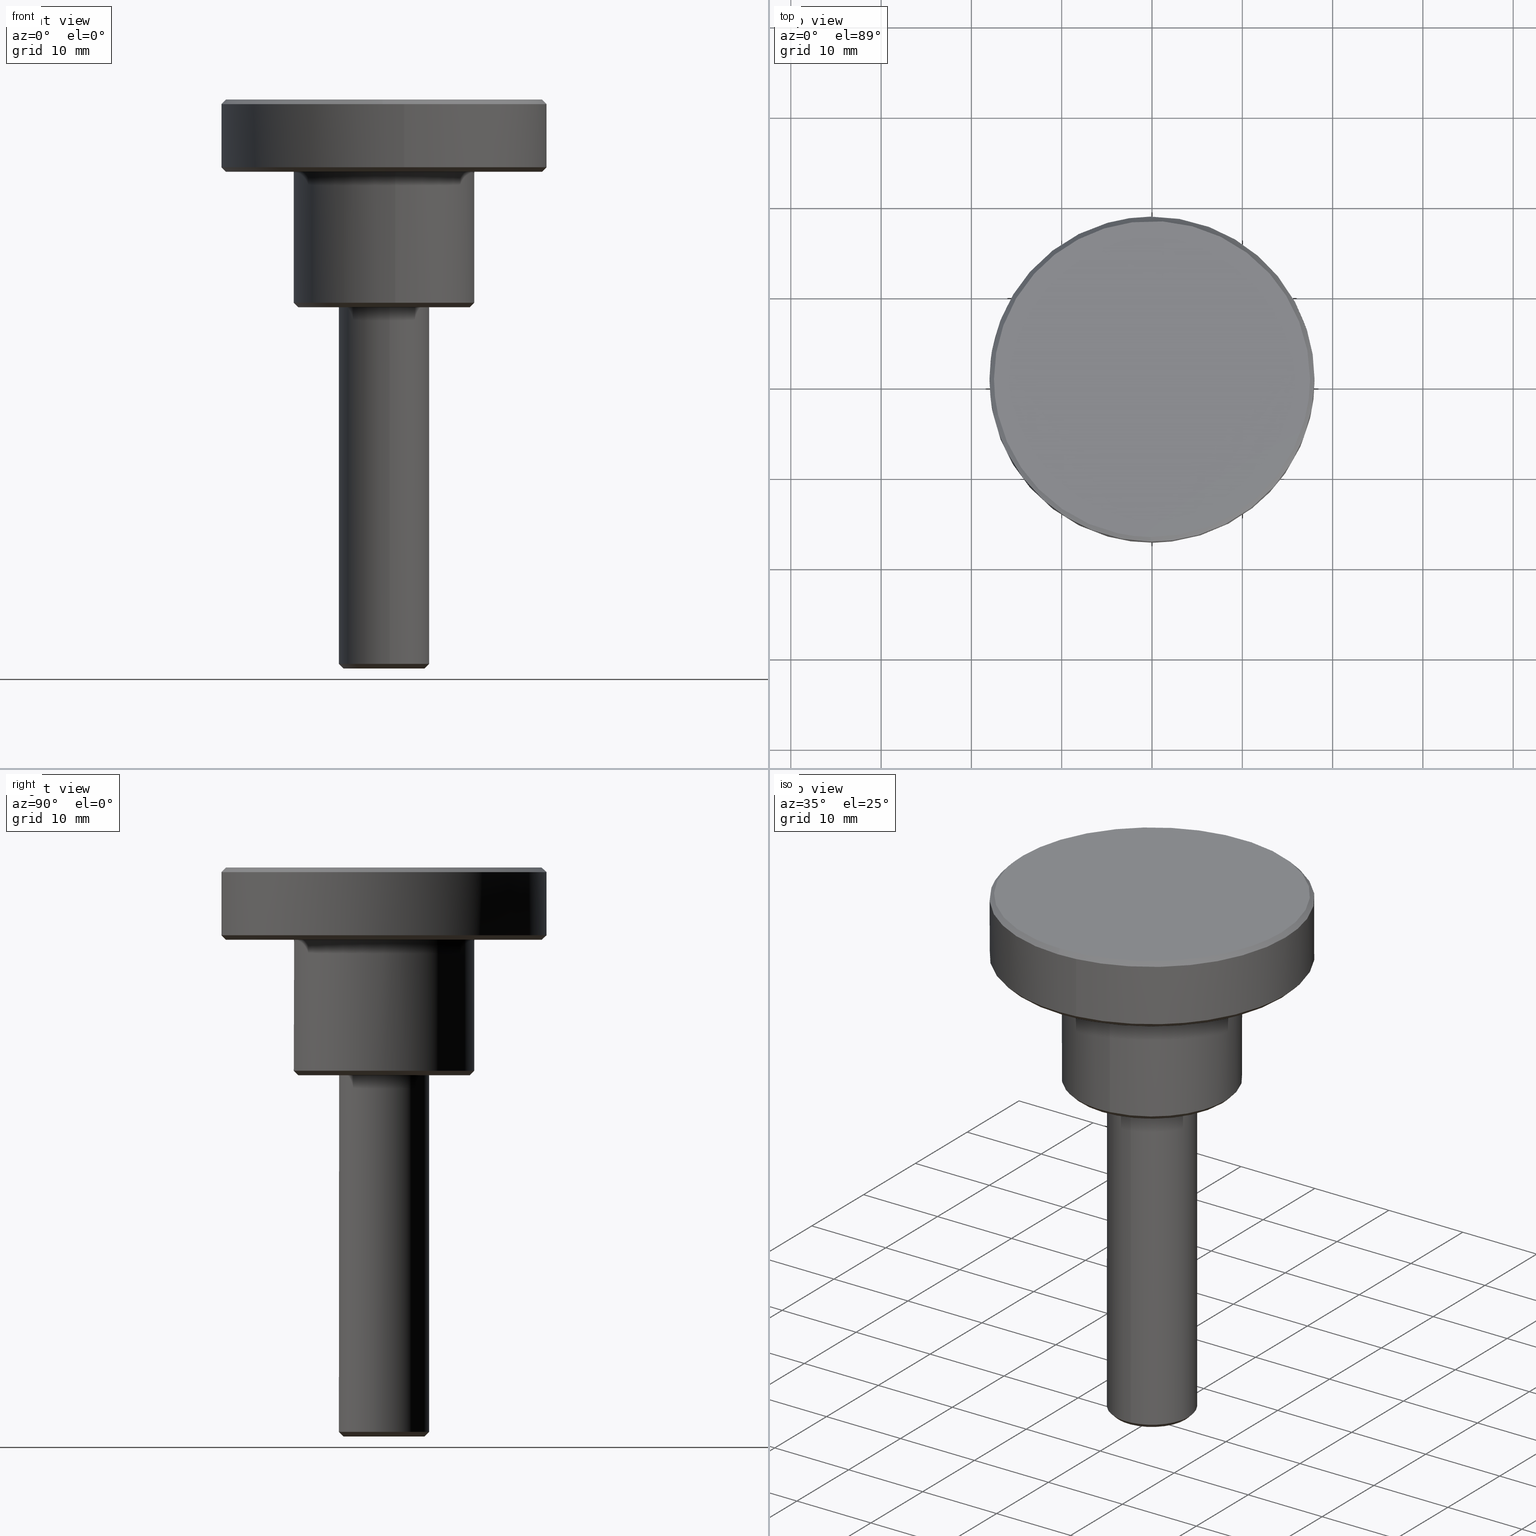
[diagram: canonical four-view strip — front | top / right | iso, engineering-drawing reading convention]
A machine part, canonical four-view strip (front | top / right | iso — engineering-drawing reading convention). The complete STEP part file that produces these views, byte-faithful:
ISO-10303-21;
HEADER;
/****************************************************************
 * Generated by software with PDE/Lib inside                    *
 * PDElib Version 4.4.1-0003, patched  Thursday August 19 11:58 *
 * International Technegroup Inc. (www.iti-oh.com)              *
 ****************************************************************/
FILE_DESCRIPTION((''),'2;1');
FILE_NAME('','2005-07-15T10:53:13',(''),(''),'','CADfix','');
FILE_SCHEMA(('AUTOMOTIVE_DESIGN'));
ENDSEC;
DATA;
#5=APPLICATION_CONTEXT('automotive design');
#6=APPLICATION_PROTOCOL_DEFINITION('Draft International Standard','automotive_design',1998,#5);
#7=PRODUCT_CONTEXT('None',#5,'mechanical');
#8=PRODUCT('knob','','None',(#7));
#9=PRODUCT_RELATED_PRODUCT_CATEGORY('part','description',(#8));
#10=PRODUCT_DEFINITION_FORMATION('None','None',#8);
#11=PRODUCT_DEFINITION_CONTEXT('part definition',#5,'design');
#12=PRODUCT_DEFINITION('None','None',#10,#11);
#18=(NAMED_UNIT(*)PLANE_ANGLE_UNIT()SI_UNIT($,.RADIAN.));
#19=DIMENSIONAL_EXPONENTS(0.0,0.0,0.0,0.0,0.0,0.0,0.0);
#20=PLANE_ANGLE_MEASURE_WITH_UNIT(PLANE_ANGLE_MEASURE(0.017453292500000),#18);
#24=(CONVERSION_BASED_UNIT('DEGREE',#20)NAMED_UNIT(#19)PLANE_ANGLE_UNIT());
#28=(NAMED_UNIT(*)SI_UNIT($,.STERADIAN.)SOLID_ANGLE_UNIT());
#32=(LENGTH_UNIT()NAMED_UNIT(*)SI_UNIT(.MILLI.,.METRE.));
#34=UNCERTAINTY_MEASURE_WITH_UNIT(LENGTH_MEASURE(0.001000000000000),#32,'DISTANCE_ACCURACY_VALUE','');
#36=(GEOMETRIC_REPRESENTATION_CONTEXT(3)GLOBAL_UNCERTAINTY_ASSIGNED_CONTEXT((#34))GLOBAL_UNIT_ASSIGNED_CONTEXT((#24,#28,#32))REPRESENTATION_CONTEXT('None','None'));
#37=AXIS2_PLACEMENT_3D('',#38,#39,#40);
#38=CARTESIAN_POINT('',(0.0,0.0,0.0));
#39=DIRECTION('',(0.0,0.0,1.0));
#40=DIRECTION('',(1.0,0.0,0.0));
#41=ADVANCED_BREP_SHAPE_REPRESENTATION('',(#37,#1267),#36);
#42=PRODUCT_DEFINITION_SHAPE('','',#12);
#43=SHAPE_DEFINITION_REPRESENTATION(#42,#41);
#44=CARTESIAN_POINT('',(-1.813916751045584,-4.104553845459478,-40.012500000000010));
#45=CARTESIAN_POINT('',(-0.928656247279884,-4.495775137049063,-40.012500000000003));
#46=CARTESIAN_POINT('',(0.039160328048953,-4.487329129750463,-40.012500000000010));
#47=CARTESIAN_POINT('',(4.526489457799416,-4.448168801701510,-40.012500000000010));
#48=CARTESIAN_POINT('',(4.487329129750463,0.039160328048953,-40.012500000000010));
#49=CARTESIAN_POINT('',(4.448168801701510,4.526489457799416,-40.012500000000010));
#50=CARTESIAN_POINT('',(-0.039160328048953,4.487329129750463,-40.012500000000010));
#51=CARTESIAN_POINT('',(-2.026256170161697,-4.585038177925830,-39.487187499999990));
#52=CARTESIAN_POINT('',(-1.037365937508112,-5.022056335195223,-39.487187499999990));
#53=CARTESIAN_POINT('',(0.043744486227942,-5.012621627460067,-39.487187499999990));
#54=CARTESIAN_POINT('',(5.056366113688009,-4.968877141232126,-39.487187499999990));
#55=CARTESIAN_POINT('',(5.012621627460067,0.043744486227942,-39.487187499999990));
#56=CARTESIAN_POINT('',(4.968877141232126,5.056366113688009,-39.487187499999990));
#57=CARTESIAN_POINT('',(-0.043744486227942,5.012621627460067,-39.487187499999990));
#65=(BOUNDED_SURFACE()B_SPLINE_SURFACE(2,1,((#44,#51),(#45,#52),(#46,#53),(#47,#54),(#48,#55),(#49,#56),(#50,#57)),.UNSPECIFIED.,.F.,.F.,.U.)B_SPLINE_SURFACE_WITH_KNOTS((3,2,2,3),(2,2),(0.0,2.325539913909364,10.631039606442799,18.936539298976239),(0.0,1.0),.UNSPECIFIED.)GEOMETRIC_REPRESENTATION_ITEM()RATIONAL_B_SPLINE_SURFACE(((0.881905454174416,0.881905454174416),(0.917989898732233,0.917989898732233),(1.0,1.0),(0.707106781186548,0.707106781186548),(1.0,1.0),(0.707106781186548,0.707106781186548),(1.0,1.0)))REPRESENTATION_ITEM('')SURFACE());
#66=CARTESIAN_POINT('',(-2.021077160081529,-4.573319047816698,-39.499999999987338));
#67=VERTEX_POINT('',#66);
#68=CARTESIAN_POINT('',(0.620640010463084,-4.961331069119694,-39.500000000000000));
#69=VERTEX_POINT('',#68);
#70=CARTESIAN_POINT('',(-2.021077160081529,-4.573319047816698,-39.499999999987331));
#71=CARTESIAN_POINT('',(-1.055578086415930,-5.0,-39.500000000000000));
#72=CARTESIAN_POINT('',(0.0,-5.0,-39.500000000000000));
#73=CARTESIAN_POINT('',(0.311524637732157,-5.0,-39.500000000000007));
#74=CARTESIAN_POINT('',(0.620640010463084,-4.961331069119694,-39.500000000000007));
#82=(BOUNDED_CURVE()B_SPLINE_CURVE(2,(#70,#71,#72,#73,#74),.UNSPECIFIED.,.F.,.U.)B_SPLINE_CURVE_WITH_KNOTS((3,2,3),(0.181361578450574,0.250000000000000,0.271473928975048),.UNSPECIFIED.)CURVE()GEOMETRIC_REPRESENTATION_ITEM()RATIONAL_B_SPLINE_CURVE((0.883326595741997,0.919585087112456,1.0,0.974841727287707,0.954005430266283))REPRESENTATION_ITEM(''));
#83=EDGE_CURVE('',#67,#69,#82,.T.);
#84=ORIENTED_EDGE('',*,*,#83,.F.);
#85=CARTESIAN_POINT('',(-1.818969443969344,-4.115987143070873,-39.999999999997897));
#86=VERTEX_POINT('',#85);
#87=CARTESIAN_POINT('',(-1.818969443969344,-4.115987143070873,-39.999999999997897));
#88=CARTESIAN_POINT('',(-2.021077160081529,-4.573319047816698,-39.499999999987338));
#89=QUASI_UNIFORM_CURVE('',1,(#87,#88),.UNSPECIFIED.,.F.,.U.);
#90=EDGE_CURVE('',#86,#67,#89,.T.);
#91=ORIENTED_EDGE('',*,*,#90,.F.);
#92=CARTESIAN_POINT('',(4.500000000000000,0.0,-40.0));
#93=VERTEX_POINT('',#92);
#94=CARTESIAN_POINT('',(4.500000000000000,0.0,-40.0));
#95=CARTESIAN_POINT('',(4.500000000000000,-4.500000000000000,-40.0));
#96=CARTESIAN_POINT('',(0.0,-4.500000000000000,-40.0));
#97=CARTESIAN_POINT('',(-0.950020277659818,-4.500000000000000,-40.000000000000007));
#98=CARTESIAN_POINT('',(-1.818969443969344,-4.115987143070873,-39.999999999997890));
#106=(BOUNDED_CURVE()B_SPLINE_CURVE(2,(#94,#95,#96,#97,#98),.UNSPECIFIED.,.F.,.U.)B_SPLINE_CURVE_WITH_KNOTS((3,2,3),(0.500000000000000,0.750000000000000,0.818638421541817),.UNSPECIFIED.)CURVE()GEOMETRIC_REPRESENTATION_ITEM()RATIONAL_B_SPLINE_CURVE((1.0,0.707106781186547,1.0,0.919585087121370,0.883326595750036))REPRESENTATION_ITEM(''));
#107=EDGE_CURVE('',#93,#86,#106,.T.);
#108=ORIENTED_EDGE('',*,*,#107,.F.);
#109=CARTESIAN_POINT('',(-0.039269409997819,4.499828653821332,-39.999999999965212));
#110=VERTEX_POINT('',#109);
#111=CARTESIAN_POINT('',(-0.039269409997819,4.499828653821332,-39.999999999965212));
#112=CARTESIAN_POINT('',(-0.019635078948004,4.499999999999999,-39.999999999999993));
#113=CARTESIAN_POINT('',(0.0,4.500000000000000,-40.0));
#114=CARTESIAN_POINT('',(4.500000000000000,4.500000000000000,-40.0));
#115=CARTESIAN_POINT('',(4.500000000000000,0.0,-40.0));
#123=(BOUNDED_CURVE()B_SPLINE_CURVE(2,(#111,#112,#113,#114,#115),.UNSPECIFIED.,.F.,.U.)B_SPLINE_CURVE_WITH_KNOTS((3,2,3),(0.248460105645062,0.250000000000000,0.500000000000000),.UNSPECIFIED.)CURVE()GEOMETRIC_REPRESENTATION_ITEM()RATIONAL_B_SPLINE_CURVE((0.996414028054235,0.998195901542999,1.0,0.707106781186547,1.0))REPRESENTATION_ITEM(''));
#124=EDGE_CURVE('',#110,#93,#123,.T.);
#125=ORIENTED_EDGE('',*,*,#124,.F.);
#126=CARTESIAN_POINT('',(-0.043632677529756,4.999809615320469,-39.500000000000028));
#127=VERTEX_POINT('',#126);
#128=CARTESIAN_POINT('',(-0.039269409997819,4.499828653821332,-39.999999999965212));
#129=CARTESIAN_POINT('',(-0.043632677529756,4.999809615320469,-39.500000000000028));
#130=QUASI_UNIFORM_CURVE('',1,(#128,#129),.UNSPECIFIED.,.F.,.U.);
#131=EDGE_CURVE('',#110,#127,#130,.T.);
#132=ORIENTED_EDGE('',*,*,#131,.T.);
#133=CARTESIAN_POINT('',(5.0,0.0,-39.500000000000000));
#134=VERTEX_POINT('',#133);
#135=CARTESIAN_POINT('',(5.0,0.0,-39.500000000000000));
#136=CARTESIAN_POINT('',(5.000000000000001,5.000000000000001,-39.500000000000000));
#137=CARTESIAN_POINT('',(0.0,5.0,-39.500000000000000));
#138=CARTESIAN_POINT('',(-0.021816754179296,5.000000000000001,-39.500000000000000));
#139=CARTESIAN_POINT('',(-0.043632677529756,4.999809615320469,-39.500000000000028));
#147=(BOUNDED_CURVE()B_SPLINE_CURVE(2,(#135,#136,#137,#138,#139),.UNSPECIFIED.,.F.,.U.)B_SPLINE_CURVE_WITH_KNOTS((3,2,3),(0.500000000000000,0.750000000000000,0.751539894340327),.UNSPECIFIED.)CURVE()GEOMETRIC_REPRESENTATION_ITEM()RATIONAL_B_SPLINE_CURVE((1.0,0.707106781186548,1.0,0.998195901560116,0.996414028088048))REPRESENTATION_ITEM(''));
#148=EDGE_CURVE('',#134,#127,#147,.T.);
#149=ORIENTED_EDGE('',*,*,#148,.F.);
#150=CARTESIAN_POINT('',(0.620640010463084,-4.961331069119694,-39.500000000000007));
#151=CARTESIAN_POINT('',(5.000000000000001,-4.413493000636504,-39.500000000000000));
#152=CARTESIAN_POINT('',(5.0,0.0,-39.500000000000000));
#160=(BOUNDED_CURVE()B_SPLINE_CURVE(2,(#150,#151,#152),.UNSPECIFIED.,.F.,.U.)B_SPLINE_CURVE_WITH_KNOTS((3,3),(0.271473928975048,0.500000000000000),.UNSPECIFIED.)CURVE()GEOMETRIC_REPRESENTATION_ITEM()RATIONAL_B_SPLINE_CURVE((0.954005430266283,0.732265053898841,1.0))REPRESENTATION_ITEM(''));
#161=EDGE_CURVE('',#69,#134,#160,.T.);
#162=ORIENTED_EDGE('',*,*,#161,.F.);
#163=EDGE_LOOP('',(#84,#91,#108,#125,#132,#149,#162));
#164=FACE_OUTER_BOUND('',#163,.T.);
#165=ADVANCED_FACE('',(#164),#65,.T.);
#166=CARTESIAN_POINT('',(-0.039160328048953,4.487329129750463,-40.012500000000010));
#167=CARTESIAN_POINT('',(-4.526489457799416,4.448168801701510,-40.012500000000010));
#168=CARTESIAN_POINT('',(-4.487329129750463,-0.039160328048953,-40.012500000000010));
#169=CARTESIAN_POINT('',(-4.462063944610636,-2.934263788488796,-40.012500000000010));
#170=CARTESIAN_POINT('',(-1.813916751045584,-4.104553845459478,-40.012500000000010));
#171=CARTESIAN_POINT('',(-0.043744486227942,5.012621627460067,-39.487187499999990));
#172=CARTESIAN_POINT('',(-5.056366113688009,4.968877141232126,-39.487187499999990));
#173=CARTESIAN_POINT('',(-5.012621627460067,-0.043744486227942,-39.487187499999990));
#174=CARTESIAN_POINT('',(-4.984398867374555,-3.277752467350165,-39.487187499999983));
#175=CARTESIAN_POINT('',(-2.026256170161697,-4.585038177925830,-39.487187499999990));
#183=(BOUNDED_SURFACE()B_SPLINE_SURFACE(2,1,((#166,#171),(#167,#172),(#168,#173),(#169,#174),(#170,#175)),.UNSPECIFIED.,.F.,.F.,.U.)B_SPLINE_SURFACE_WITH_KNOTS((3,2,3),(2,2),(0.0,8.305499692533440,14.285459471157520),(0.0,1.0),.UNSPECIFIED.)GEOMETRIC_REPRESENTATION_ITEM()RATIONAL_B_SPLINE_SURFACE(((1.0,1.0),(0.707106781186548,0.707106781186548),(1.0,1.0),(0.789116882454314,0.789116882454314),(0.881905454174416,0.881905454174416)))REPRESENTATION_ITEM('')SURFACE());
#184=CARTESIAN_POINT('',(-5.0,0.0,-39.500000000000000));
#185=VERTEX_POINT('',#184);
#186=CARTESIAN_POINT('',(-5.0,0.0,-39.500000000000000));
#187=CARTESIAN_POINT('',(-5.0,-3.256850012744719,-39.499999999999993));
#188=CARTESIAN_POINT('',(-2.021077160081529,-4.573319047816698,-39.499999999987331));
#196=(BOUNDED_CURVE()B_SPLINE_CURVE(2,(#186,#187,#188),.UNSPECIFIED.,.F.,.U.)B_SPLINE_CURVE_WITH_KNOTS((3,3),(0.0,0.181361578450574),.UNSPECIFIED.)CURVE()GEOMETRIC_REPRESENTATION_ITEM()RATIONAL_B_SPLINE_CURVE((1.0,0.787521694074091,0.883326595741997))REPRESENTATION_ITEM(''));
#197=EDGE_CURVE('',#185,#67,#196,.T.);
#198=ORIENTED_EDGE('',*,*,#197,.F.);
#199=CARTESIAN_POINT('',(-0.043632677529756,4.999809615320469,-39.500000000000036));
#200=CARTESIAN_POINT('',(-4.999999999999998,4.956556052824646,-39.500000000000000));
#201=CARTESIAN_POINT('',(-5.0,0.0,-39.500000000000000));
#209=(BOUNDED_CURVE()B_SPLINE_CURVE(2,(#199,#200,#201),.UNSPECIFIED.,.F.,.U.)B_SPLINE_CURVE_WITH_KNOTS((3,3),(0.751539894340326,1.0),.UNSPECIFIED.)CURVE()GEOMETRIC_REPRESENTATION_ITEM()RATIONAL_B_SPLINE_CURVE((0.996414028088050,0.708910879626431,1.0))REPRESENTATION_ITEM(''));
#210=EDGE_CURVE('',#127,#185,#209,.T.);
#211=ORIENTED_EDGE('',*,*,#210,.F.);
#212=ORIENTED_EDGE('',*,*,#131,.F.);
#213=CARTESIAN_POINT('',(-4.500000000000000,0.0,-40.0));
#214=VERTEX_POINT('',#213);
#215=CARTESIAN_POINT('',(-4.500000000000000,0.0,-40.0));
#216=CARTESIAN_POINT('',(-4.500000000000001,4.460900447172129,-40.000000000000007));
#217=CARTESIAN_POINT('',(-0.039269409997819,4.499828653821332,-39.999999999965219));
#225=(BOUNDED_CURVE()B_SPLINE_CURVE(2,(#215,#216,#217),.UNSPECIFIED.,.F.,.U.)B_SPLINE_CURVE_WITH_KNOTS((3,3),(0.0,0.248460105645062),.UNSPECIFIED.)CURVE()GEOMETRIC_REPRESENTATION_ITEM()RATIONAL_B_SPLINE_CURVE((1.0,0.708910879643549,0.996414028054235))REPRESENTATION_ITEM(''));
#226=EDGE_CURVE('',#214,#110,#225,.T.);
#227=ORIENTED_EDGE('',*,*,#226,.F.);
#228=CARTESIAN_POINT('',(-1.818969443969344,-4.115987143070873,-39.999999999997897));
#229=CARTESIAN_POINT('',(-4.500000000000000,-2.931165011626409,-39.999999999999993));
#230=CARTESIAN_POINT('',(-4.500000000000000,0.0,-40.0));
#238=(BOUNDED_CURVE()B_SPLINE_CURVE(2,(#228,#229,#230),.UNSPECIFIED.,.F.,.U.)B_SPLINE_CURVE_WITH_KNOTS((3,3),(0.818638421541816,1.0),.UNSPECIFIED.)CURVE()GEOMETRIC_REPRESENTATION_ITEM()RATIONAL_B_SPLINE_CURVE((0.883326595750036,0.787521694065176,1.0))REPRESENTATION_ITEM(''));
#239=EDGE_CURVE('',#86,#214,#238,.T.);
#240=ORIENTED_EDGE('',*,*,#239,.F.);
#241=ORIENTED_EDGE('',*,*,#90,.T.);
#242=EDGE_LOOP('',(#198,#211,#212,#227,#240,#241));
#243=FACE_OUTER_BOUND('',#242,.T.);
#244=ADVANCED_FACE('',(#243),#183,.T.);
#245=CARTESIAN_POINT('',(-17.036639953710658,-3.945320688819989,23.012499999999999));
#246=CARTESIAN_POINT('',(-17.504948331500820,-1.923076656205386,23.012500000000003));
#247=CARTESIAN_POINT('',(-17.486834129584739,0.152605289527814,23.012499999999999));
#248=CARTESIAN_POINT('',(-17.334228840056934,17.639439419112552,23.012500000000006));
#249=CARTESIAN_POINT('',(0.152605289527814,17.486834129584739,23.012499999999999));
#250=CARTESIAN_POINT('',(17.639439419112552,17.334228840056934,23.012500000000006));
#251=CARTESIAN_POINT('',(17.486834129584739,-0.152605289527814,23.012499999999999));
#252=CARTESIAN_POINT('',(17.334228840056934,-17.639439419112552,23.012500000000006));
#253=CARTESIAN_POINT('',(-0.152605289527814,-17.486834129584739,23.012499999999999));
#254=CARTESIAN_POINT('',(-17.548408927302248,-4.063835415015588,22.487187499999994));
#255=CARTESIAN_POINT('',(-18.030784967405925,-1.980844559334066,22.487187499999990));
#256=CARTESIAN_POINT('',(-18.012126627294339,0.157189447706803,22.487187500000001));
#257=CARTESIAN_POINT('',(-17.854937179587541,18.169316075001138,22.487187500000005));
#258=CARTESIAN_POINT('',(0.157189447706803,18.012126627294339,22.487187500000001));
#259=CARTESIAN_POINT('',(18.169316075001138,17.854937179587541,22.487187500000005));
#260=CARTESIAN_POINT('',(18.012126627294339,-0.157189447706803,22.487187500000001));
#261=CARTESIAN_POINT('',(17.854937179587541,-18.169316075001138,22.487187500000005));
#262=CARTESIAN_POINT('',(-0.157189447706803,-18.012126627294339,22.487187500000001));
#270=(BOUNDED_SURFACE()B_SPLINE_SURFACE(2,1,((#245,#254),(#246,#255),(#247,#256),(#248,#257),(#249,#258),(#250,#259),(#251,#260),(#252,#261),(#253,#262)),.UNSPECIFIED.,.F.,.F.,.U.)B_SPLINE_SURFACE_WITH_KNOTS((3,2,2,2,3),(2,2),(0.0,4.775136789749517,34.619741725683980,64.464346661618450,94.308951597552920),(0.0,1.0),.UNSPECIFIED.)GEOMETRIC_REPRESENTATION_ITEM()RATIONAL_B_SPLINE_SURFACE(((0.921270302782944,0.921270302782944),(0.953137084989848,0.953137084989848),(1.0,1.0),(0.707106781186548,0.707106781186548),(1.0,1.0),(0.707106781186548,0.707106781186548),(1.0,1.0),(0.707106781186548,0.707106781186548),(1.0,1.0)))REPRESENTATION_ITEM('')SURFACE());
#271=CARTESIAN_POINT('',(-17.535926757211090,-4.060944811968877,22.499999999996419));
#272=VERTEX_POINT('',#271);
#273=CARTESIAN_POINT('',(-18.0,0.0,22.500000000000000));
#274=VERTEX_POINT('',#273);
#275=CARTESIAN_POINT('',(-17.535926757211083,-4.060944811968877,22.499999999996422));
#276=CARTESIAN_POINT('',(-18.0,-2.056988892266935,22.500000000000004));
#277=CARTESIAN_POINT('',(-18.0,0.0,22.500000000000000));
#285=(BOUNDED_CURVE()B_SPLINE_CURVE(2,(#275,#276,#277),.UNSPECIFIED.,.F.,.U.)B_SPLINE_CURVE_WITH_KNOTS((3,3),(0.961422971784043,1.0),.UNSPECIFIED.)CURVE()GEOMETRIC_REPRESENTATION_ITEM()RATIONAL_B_SPLINE_CURVE((0.923556557441867,0.954804200134283,1.0))REPRESENTATION_ITEM(''));
#286=EDGE_CURVE('',#272,#274,#285,.T.);
#287=ORIENTED_EDGE('',*,*,#286,.F.);
#288=CARTESIAN_POINT('',(-17.048817680625131,-3.948140789385914,22.999999999999769));
#289=VERTEX_POINT('',#288);
#290=CARTESIAN_POINT('',(-17.048817680625131,-3.948140789385914,22.999999999999769));
#291=CARTESIAN_POINT('',(-17.535926757211090,-4.060944811968877,22.499999999996419));
#292=QUASI_UNIFORM_CURVE('',1,(#290,#291),.UNSPECIFIED.,.F.,.U.);
#293=EDGE_CURVE('',#289,#272,#292,.T.);
#294=ORIENTED_EDGE('',*,*,#293,.F.);
#295=CARTESIAN_POINT('',(-17.500000000000000,0.0,23.0));
#296=VERTEX_POINT('',#295);
#297=CARTESIAN_POINT('',(-17.500000000000000,0.0,23.0));
#298=CARTESIAN_POINT('',(-17.500000000000000,-1.999850311897530,23.0));
#299=CARTESIAN_POINT('',(-17.048817680625131,-3.948140789385913,22.999999999999780));
#307=(BOUNDED_CURVE()B_SPLINE_CURVE(2,(#297,#298,#299),.UNSPECIFIED.,.F.,.U.)B_SPLINE_CURVE_WITH_KNOTS((3,3),(0.500000000000000,0.538577028215430),.UNSPECIFIED.)CURVE()GEOMETRIC_REPRESENTATION_ITEM()RATIONAL_B_SPLINE_CURVE((1.0,0.954804200134902,0.923556557442722))REPRESENTATION_ITEM(''));
#308=EDGE_CURVE('',#296,#289,#307,.T.);
#309=ORIENTED_EDGE('',*,*,#308,.F.);
#310=CARTESIAN_POINT('',(17.500000000000000,0.0,23.0));
#311=VERTEX_POINT('',#310);
#312=CARTESIAN_POINT('',(17.500000000000000,0.0,23.0));
#313=CARTESIAN_POINT('',(17.499999999999996,17.499999999999996,22.999999999999993));
#314=CARTESIAN_POINT('',(0.0,17.500000000000000,23.0));
#315=CARTESIAN_POINT('',(-17.499999999999996,17.499999999999996,22.999999999999993));
#316=CARTESIAN_POINT('',(-17.500000000000000,0.0,23.0));
#324=(BOUNDED_CURVE()B_SPLINE_CURVE(2,(#312,#313,#314,#315,#316),.UNSPECIFIED.,.F.,.U.)B_SPLINE_CURVE_WITH_KNOTS((3,2,3),(0.0,0.250000000000000,0.500000000000000),.UNSPECIFIED.)CURVE()GEOMETRIC_REPRESENTATION_ITEM()RATIONAL_B_SPLINE_CURVE((1.0,0.707106781186548,1.0,0.707106781186548,1.0))REPRESENTATION_ITEM(''));
#325=EDGE_CURVE('',#311,#296,#324,.T.);
#326=ORIENTED_EDGE('',*,*,#325,.F.);
#327=CARTESIAN_POINT('',(-0.152714371282346,-17.499333653630739,22.999999999991751));
#328=VERTEX_POINT('',#327);
#329=CARTESIAN_POINT('',(-0.152714371282346,-17.499333653630735,22.999999999991754));
#330=CARTESIAN_POINT('',(-0.076358639423012,-17.499999999999993,23.000000000000004));
#331=CARTESIAN_POINT('',(0.0,-17.500000000000000,23.0));
#332=CARTESIAN_POINT('',(17.499999999999996,-17.499999999999996,22.999999999999993));
#333=CARTESIAN_POINT('',(17.500000000000000,0.0,23.0));
#341=(BOUNDED_CURVE()B_SPLINE_CURVE(2,(#329,#330,#331,#332,#333),.UNSPECIFIED.,.F.,.U.)B_SPLINE_CURVE_WITH_KNOTS((3,2,3),(0.748460105663790,0.750000000000000,1.0),.UNSPECIFIED.)CURVE()GEOMETRIC_REPRESENTATION_ITEM()RATIONAL_B_SPLINE_CURVE((0.996414028097576,0.998195901564940,1.0,0.707106781186548,1.0))REPRESENTATION_ITEM(''));
#342=EDGE_CURVE('',#328,#311,#341,.T.);
#343=ORIENTED_EDGE('',*,*,#342,.F.);
#344=CARTESIAN_POINT('',(-0.157077639014598,-17.999314615160650,22.499999999994049));
#345=VERTEX_POINT('',#344);
#346=CARTESIAN_POINT('',(-0.152714371282346,-17.499333653630739,22.999999999991751));
#347=CARTESIAN_POINT('',(-0.157077639014598,-17.999314615160650,22.499999999994049));
#348=QUASI_UNIFORM_CURVE('',1,(#346,#347),.UNSPECIFIED.,.F.,.U.);
#349=EDGE_CURVE('',#328,#345,#348,.T.);
#350=ORIENTED_EDGE('',*,*,#349,.T.);
#351=CARTESIAN_POINT('',(2.234285799115181,-17.860794130372089,22.499999999999989));
#352=VERTEX_POINT('',#351);
#353=CARTESIAN_POINT('',(2.234285799115181,-17.860794130372092,22.499999999999982));
#354=CARTESIAN_POINT('',(1.121479469692560,-18.000000000000004,22.500000000000004));
#355=CARTESIAN_POINT('',(0.0,-18.0,22.500000000000000));
#356=CARTESIAN_POINT('',(-0.078540314816423,-17.999999999999996,22.500000000000000));
#357=CARTESIAN_POINT('',(-0.157077639014598,-17.999314615160653,22.499999999994046));
#365=(BOUNDED_CURVE()B_SPLINE_CURVE(2,(#353,#354,#355,#356,#357),.UNSPECIFIED.,.F.,.U.)B_SPLINE_CURVE_WITH_KNOTS((3,2,3),(0.728526243239963,0.750000000000000,0.751539894335844),.UNSPECIFIED.)CURVE()GEOMETRIC_REPRESENTATION_ITEM()RATIONAL_B_SPLINE_CURVE((0.954005764469317,0.974841929050143,1.0,0.998195901565368,0.996414028098422))REPRESENTATION_ITEM(''));
#366=EDGE_CURVE('',#352,#345,#365,.T.);
#367=ORIENTED_EDGE('',*,*,#366,.F.);
#368=CARTESIAN_POINT('',(18.0,0.0,22.500000000000000));
#369=VERTEX_POINT('',#368);
#370=CARTESIAN_POINT('',(18.0,0.0,22.500000000000000));
#371=CARTESIAN_POINT('',(18.000000000000004,-15.888591153580794,22.500000000000000));
#372=CARTESIAN_POINT('',(2.234285799115181,-17.860794130372092,22.499999999999982));
#380=(BOUNDED_CURVE()B_SPLINE_CURVE(2,(#370,#371,#372),.UNSPECIFIED.,.F.,.U.)B_SPLINE_CURVE_WITH_KNOTS((3,3),(0.500000000000000,0.728526243239963),.UNSPECIFIED.)CURVE()GEOMETRIC_REPRESENTATION_ITEM()RATIONAL_B_SPLINE_CURVE((1.0,0.732264852136405,0.954005764469317))REPRESENTATION_ITEM(''));
#381=EDGE_CURVE('',#369,#352,#380,.T.);
#382=ORIENTED_EDGE('',*,*,#381,.F.);
#383=CARTESIAN_POINT('',(-0.157059840432598,17.999314770462970,22.499999999999879));
#384=VERTEX_POINT('',#383);
#385=CARTESIAN_POINT('',(-0.157059840432598,17.999314770462966,22.499999999999879));
#386=CARTESIAN_POINT('',(-0.078531414995351,18.0,22.500000000000000));
#387=CARTESIAN_POINT('',(0.0,18.0,22.500000000000000));
#388=CARTESIAN_POINT('',(18.000000000000007,18.000000000000007,22.500000000000004));
#389=CARTESIAN_POINT('',(18.0,0.0,22.500000000000000));
#397=(BOUNDED_CURVE()B_SPLINE_CURVE(2,(#385,#386,#387,#388,#389),.UNSPECIFIED.,.F.,.U.)B_SPLINE_CURVE_WITH_KNOTS((3,2,3),(0.248460279843010,0.250000000000000,0.500000000000000),.UNSPECIFIED.)CURVE()GEOMETRIC_REPRESENTATION_ITEM()RATIONAL_B_SPLINE_CURVE((0.996414431197377,0.998196105628589,1.0,0.707106781186547,1.0))REPRESENTATION_ITEM(''));
#398=EDGE_CURVE('',#384,#369,#397,.T.);
#399=ORIENTED_EDGE('',*,*,#398,.F.);
#400=CARTESIAN_POINT('',(-18.0,0.0,22.500000000000000));
#401=CARTESIAN_POINT('',(-18.000000000000007,17.843619435952210,22.500000000000007));
#402=CARTESIAN_POINT('',(-0.157059840432598,17.999314770462966,22.499999999999879));
#410=(BOUNDED_CURVE()B_SPLINE_CURVE(2,(#400,#401,#402),.UNSPECIFIED.,.F.,.U.)B_SPLINE_CURVE_WITH_KNOTS((3,3),(0.0,0.248460279843010),.UNSPECIFIED.)CURVE()GEOMETRIC_REPRESENTATION_ITEM()RATIONAL_B_SPLINE_CURVE((1.0,0.708910675557958,0.996414431197377))REPRESENTATION_ITEM(''));
#411=EDGE_CURVE('',#274,#384,#410,.T.);
#412=ORIENTED_EDGE('',*,*,#411,.F.);
#413=EDGE_LOOP('',(#287,#294,#309,#326,#343,#350,#367,#382,#399,#412));
#414=FACE_OUTER_BOUND('',#413,.T.);
#415=ADVANCED_FACE('',(#414),#270,.T.);
#416=CARTESIAN_POINT('',(-0.152605289527814,-17.486834129584739,23.012499999999999));
#417=CARTESIAN_POINT('',(-13.928556243240688,-17.366613226919718,23.012500000000003));
#418=CARTESIAN_POINT('',(-17.036639953710658,-3.945320688819989,23.012499999999999));
#419=CARTESIAN_POINT('',(-0.157189447706803,-18.012126627294339,22.487187500000001));
#420=CARTESIAN_POINT('',(-14.346960514950569,-17.888294371209376,22.487187500000001));
#421=CARTESIAN_POINT('',(-17.548408927302248,-4.063835415015588,22.487187499999994));
#429=(BOUNDED_SURFACE()B_SPLINE_SURFACE(2,1,((#416,#419),(#417,#420),(#418,#421)),.UNSPECIFIED.,.F.,.F.,.U.)B_SPLINE_SURFACE_WITH_KNOTS((3,3),(2,2),(0.0,24.959837908595269),(0.0,1.0),.UNSPECIFIED.)GEOMETRIC_REPRESENTATION_ITEM()RATIONAL_B_SPLINE_SURFACE(((1.0,1.0),(0.753969696196700,0.753969696196700),(0.921270302782944,0.921270302782944)))REPRESENTATION_ITEM('')SURFACE());
#430=CARTESIAN_POINT('',(-0.157077639014598,-17.999314615160653,22.499999999994053));
#431=CARTESIAN_POINT('',(-14.336755532679229,-17.875570440792114,22.500000000000011));
#432=CARTESIAN_POINT('',(-17.535926757211087,-4.060944811968877,22.499999999996426));
#440=(BOUNDED_CURVE()B_SPLINE_CURVE(2,(#430,#431,#432),.UNSPECIFIED.,.F.,.U.)B_SPLINE_CURVE_WITH_KNOTS((3,3),(0.751539894335845,0.961422971784043),.UNSPECIFIED.)CURVE()GEOMETRIC_REPRESENTATION_ITEM()RATIONAL_B_SPLINE_CURVE((0.996414028098421,0.753549905437158,0.923556557441868))REPRESENTATION_ITEM(''));
#441=EDGE_CURVE('',#345,#272,#440,.T.);
#442=ORIENTED_EDGE('',*,*,#441,.F.);
#443=ORIENTED_EDGE('',*,*,#349,.F.);
#444=CARTESIAN_POINT('',(-17.048817680625131,-3.948140789385914,22.999999999999776));
#445=CARTESIAN_POINT('',(-13.938512323490519,-17.379026817407762,23.0));
#446=CARTESIAN_POINT('',(-0.152714371282346,-17.499333653630735,22.999999999991754));
#454=(BOUNDED_CURVE()B_SPLINE_CURVE(2,(#444,#445,#446),.UNSPECIFIED.,.F.,.U.)B_SPLINE_CURVE_WITH_KNOTS((3,3),(0.538577028215430,0.748460105663791),.UNSPECIFIED.)CURVE()GEOMETRIC_REPRESENTATION_ITEM()RATIONAL_B_SPLINE_CURVE((0.923556557442722,0.753549905436844,0.996414028097577))REPRESENTATION_ITEM(''));
#455=EDGE_CURVE('',#289,#328,#454,.T.);
#456=ORIENTED_EDGE('',*,*,#455,.F.);
#457=ORIENTED_EDGE('',*,*,#293,.T.);
#458=EDGE_LOOP('',(#442,#443,#456,#457));
#459=FACE_OUTER_BOUND('',#458,.T.);
#460=ADVANCED_FACE('',(#459),#429,.T.);
#461=CARTESIAN_POINT('',(14.319921146030703,-10.037555211378052,14.987499999999999));
#462=CARTESIAN_POINT('',(17.535725391208214,-5.449778383031156,14.987499999999997));
#463=CARTESIAN_POINT('',(17.486834129584690,0.152605289527813,14.987500000000001));
#464=CARTESIAN_POINT('',(17.334228840056877,17.639439419112509,14.987499999999997));
#465=CARTESIAN_POINT('',(-0.152605289527813,17.486834129584690,14.987500000000001));
#466=CARTESIAN_POINT('',(-17.639439419112509,17.334228840056877,14.987499999999997));
#467=CARTESIAN_POINT('',(-17.486834129584690,-0.152605289527813,14.987500000000001));
#468=CARTESIAN_POINT('',(-17.334228840056877,-17.639439419112509,14.987499999999997));
#469=CARTESIAN_POINT('',(0.152605289527813,-17.486834129584690,14.987500000000001));
#470=CARTESIAN_POINT('',(14.750081750864162,-10.339076482113015,15.512812500000001));
#471=CARTESIAN_POINT('',(18.062486548867700,-5.613485985995353,15.512812500000004));
#472=CARTESIAN_POINT('',(18.012126627294400,0.157189447706803,15.512812500000001));
#473=CARTESIAN_POINT('',(17.854937179587598,18.169316075001209,15.512812499999999));
#474=CARTESIAN_POINT('',(-0.157189447706803,18.012126627294400,15.512812500000001));
#475=CARTESIAN_POINT('',(-18.169316075001209,17.854937179587598,15.512812499999999));
#476=CARTESIAN_POINT('',(-18.012126627294400,-0.157189447706803,15.512812500000001));
#477=CARTESIAN_POINT('',(-17.854937179587598,-18.169316075001209,15.512812499999999));
#478=CARTESIAN_POINT('',(0.157189447706803,-18.012126627294400,15.512812500000001));
#486=(BOUNDED_SURFACE()B_SPLINE_SURFACE(2,1,((#461,#470),(#462,#471),(#463,#472),(#464,#473),(#465,#474),(#466,#475),(#467,#476),(#468,#477),(#469,#478)),.UNSPECIFIED.,.F.,.F.,.U.)B_SPLINE_SURFACE_WITH_KNOTS((3,2,2,2,3),(2,2),(0.0,11.937841974373820,41.782446910308373,71.627051846242935,101.471656782177500),(0.0,1.0),.UNSPECIFIED.)GEOMETRIC_REPRESENTATION_ITEM()RATIONAL_B_SPLINE_SURFACE(((0.859411254969543,0.859411254969543),(0.882842712474619,0.882842712474619),(1.0,1.0),(0.707106781186548,0.707106781186548),(1.0,1.0),(0.707106781186548,0.707106781186548),(1.0,1.0),(0.707106781186548,0.707106781186548),(1.0,1.0)))REPRESENTATION_ITEM('')SURFACE());
#487=CARTESIAN_POINT('',(17.500000000000000,0.0,15.0));
#488=VERTEX_POINT('',#487);
#489=CARTESIAN_POINT('',(14.330156972431750,-10.044730018546430,15.000000000000631));
#490=VERTEX_POINT('',#489);
#491=CARTESIAN_POINT('',(17.500000000000000,0.0,15.0));
#492=CARTESIAN_POINT('',(17.499999999999993,-5.522523042442423,14.999999999999998));
#493=CARTESIAN_POINT('',(14.330156972431745,-10.044730018546428,15.000000000000631));
#501=(BOUNDED_CURVE()B_SPLINE_CURVE(2,(#491,#492,#493),.UNSPECIFIED.,.F.,.U.)B_SPLINE_CURVE_WITH_KNOTS((3,3),(0.0,0.098673726203125),.UNSPECIFIED.)CURVE()GEOMETRIC_REPRESENTATION_ITEM()RATIONAL_B_SPLINE_CURVE((1.0,0.884396538880198,0.860049271925747))REPRESENTATION_ITEM(''));
#502=EDGE_CURVE('',#488,#490,#501,.T.);
#503=ORIENTED_EDGE('',*,*,#502,.F.);
#504=CARTESIAN_POINT('',(-17.500000000000000,0.0,15.0));
#505=VERTEX_POINT('',#504);
#506=CARTESIAN_POINT('',(-17.500000000000000,0.0,15.0));
#507=CARTESIAN_POINT('',(-17.499999999999996,17.499999999999996,14.999999999999995));
#508=CARTESIAN_POINT('',(0.0,17.500000000000000,15.0));
#509=CARTESIAN_POINT('',(17.499999999999996,17.499999999999996,14.999999999999995));
#510=CARTESIAN_POINT('',(17.500000000000000,0.0,15.0));
#518=(BOUNDED_CURVE()B_SPLINE_CURVE(2,(#506,#507,#508,#509,#510),.UNSPECIFIED.,.F.,.U.)B_SPLINE_CURVE_WITH_KNOTS((3,2,3),(0.500000000000000,0.750000000000000,1.0),.UNSPECIFIED.)CURVE()GEOMETRIC_REPRESENTATION_ITEM()RATIONAL_B_SPLINE_CURVE((1.0,0.707106781186548,1.0,0.707106781186548,1.0))REPRESENTATION_ITEM(''));
#519=EDGE_CURVE('',#505,#488,#518,.T.);
#520=ORIENTED_EDGE('',*,*,#519,.F.);
#521=CARTESIAN_POINT('',(0.152714371282345,-17.499333653630728,15.000000000008260));
#522=VERTEX_POINT('',#521);
#523=CARTESIAN_POINT('',(0.152714371282345,-17.499333653630728,15.000000000008264));
#524=CARTESIAN_POINT('',(0.076358639423010,-17.500000000000004,15.000000000000004));
#525=CARTESIAN_POINT('',(0.0,-17.500000000000000,15.0));
#526=CARTESIAN_POINT('',(-17.499999999999996,-17.499999999999996,14.999999999999995));
#527=CARTESIAN_POINT('',(-17.500000000000000,0.0,15.0));
#535=(BOUNDED_CURVE()B_SPLINE_CURVE(2,(#523,#524,#525,#526,#527),.UNSPECIFIED.,.F.,.U.)B_SPLINE_CURVE_WITH_KNOTS((3,2,3),(0.248460105663790,0.250000000000000,0.500000000000000),.UNSPECIFIED.)CURVE()GEOMETRIC_REPRESENTATION_ITEM()RATIONAL_B_SPLINE_CURVE((0.996414028097576,0.998195901564940,1.0,0.707106781186548,1.0))REPRESENTATION_ITEM(''));
#536=EDGE_CURVE('',#522,#505,#535,.T.);
#537=ORIENTED_EDGE('',*,*,#536,.F.);
#538=CARTESIAN_POINT('',(0.157077638971878,-17.999314615155239,15.500000000000149));
#539=VERTEX_POINT('',#538);
#540=CARTESIAN_POINT('',(0.152714371282345,-17.499333653630728,15.000000000008260));
#541=CARTESIAN_POINT('',(0.157077638971878,-17.999314615155239,15.500000000000149));
#542=QUASI_UNIFORM_CURVE('',1,(#540,#541),.UNSPECIFIED.,.F.,.U.);
#543=EDGE_CURVE('',#522,#539,#542,.T.);
#544=ORIENTED_EDGE('',*,*,#543,.T.);
#545=CARTESIAN_POINT('',(-18.0,0.0,15.500000000000000));
#546=VERTEX_POINT('',#545);
#547=CARTESIAN_POINT('',(-18.0,0.0,15.500000000000000));
#548=CARTESIAN_POINT('',(-18.000000000000007,-18.000000000000007,15.500000000000005));
#549=CARTESIAN_POINT('',(0.0,-18.0,15.500000000000000));
#550=CARTESIAN_POINT('',(0.078540314773772,-18.000000000000007,15.499999999999998));
#551=CARTESIAN_POINT('',(0.157077638971878,-17.999314615155246,15.500000000000144));
#559=(BOUNDED_CURVE()B_SPLINE_CURVE(2,(#547,#548,#549,#550,#551),.UNSPECIFIED.,.F.,.U.)B_SPLINE_CURVE_WITH_KNOTS((3,2,3),(0.0,0.250000000000000,0.251539894335010),.UNSPECIFIED.)CURVE()GEOMETRIC_REPRESENTATION_ITEM()RATIONAL_B_SPLINE_CURVE((1.0,0.707106781186547,1.0,0.998195901566346,0.996414028100354))REPRESENTATION_ITEM(''));
#560=EDGE_CURVE('',#546,#539,#559,.T.);
#561=ORIENTED_EDGE('',*,*,#560,.F.);
#562=CARTESIAN_POINT('',(-0.157060157866993,17.999314767693381,15.500000000000000));
#563=VERTEX_POINT('',#562);
#564=CARTESIAN_POINT('',(-0.157060157866993,17.999314767693381,15.500000000000004));
#565=CARTESIAN_POINT('',(-18.000000000000004,17.843619121251677,15.500000000000002));
#566=CARTESIAN_POINT('',(-18.0,0.0,15.500000000000000));
#574=(BOUNDED_CURVE()B_SPLINE_CURVE(2,(#564,#565,#566),.UNSPECIFIED.,.F.,.U.)B_SPLINE_CURVE_WITH_KNOTS((3,3),(0.751539723263430,1.0),.UNSPECIFIED.)CURVE()GEOMETRIC_REPRESENTATION_ITEM()RATIONAL_B_SPLINE_CURVE((0.996414424008193,0.708910679197379,1.0))REPRESENTATION_ITEM(''));
#575=EDGE_CURVE('',#563,#546,#574,.T.);
#576=ORIENTED_EDGE('',*,*,#575,.F.);
#577=CARTESIAN_POINT('',(18.0,0.0,15.500000000000000));
#578=VERTEX_POINT('',#577);
#579=CARTESIAN_POINT('',(18.0,0.0,15.500000000000000));
#580=CARTESIAN_POINT('',(18.000000000000007,18.000000000000007,15.500000000000005));
#581=CARTESIAN_POINT('',(0.0,18.0,15.500000000000000));
#582=CARTESIAN_POINT('',(-0.078531573721610,18.000000000000004,15.500000000000004));
#583=CARTESIAN_POINT('',(-0.157060157866993,17.999314767693381,15.500000000000004));
#591=(BOUNDED_CURVE()B_SPLINE_CURVE(2,(#579,#580,#581,#582,#583),.UNSPECIFIED.,.F.,.U.)B_SPLINE_CURVE_WITH_KNOTS((3,2,3),(0.500000000000000,0.750000000000000,0.751539723263430),.UNSPECIFIED.)CURVE()GEOMETRIC_REPRESENTATION_ITEM()RATIONAL_B_SPLINE_CURVE((1.0,0.707106781186547,1.0,0.998196101989168,0.996414424008193))REPRESENTATION_ITEM(''));
#592=EDGE_CURVE('',#578,#563,#591,.T.);
#593=ORIENTED_EDGE('',*,*,#592,.F.);
#594=CARTESIAN_POINT('',(14.739590028784630,-10.331722304794230,15.500000000000799));
#595=VERTEX_POINT('',#594);
#596=CARTESIAN_POINT('',(14.739590028784635,-10.331722304794228,15.500000000000808));
#597=CARTESIAN_POINT('',(18.000000000000007,-5.680309415088353,15.499999999999996));
#598=CARTESIAN_POINT('',(18.0,0.0,15.500000000000000));
#606=(BOUNDED_CURVE()B_SPLINE_CURVE(2,(#596,#597,#598),.UNSPECIFIED.,.F.,.U.)B_SPLINE_CURVE_WITH_KNOTS((3,3),(0.401326273796802,0.500000000000000),.UNSPECIFIED.)CURVE()GEOMETRIC_REPRESENTATION_ITEM()RATIONAL_B_SPLINE_CURVE((0.860049271925711,0.884396538880112,1.0))REPRESENTATION_ITEM(''));
#607=EDGE_CURVE('',#595,#578,#606,.T.);
#608=ORIENTED_EDGE('',*,*,#607,.F.);
#609=CARTESIAN_POINT('',(14.330156972431750,-10.044730018546430,15.000000000000631));
#610=CARTESIAN_POINT('',(14.739590028784630,-10.331722304794230,15.500000000000799));
#611=QUASI_UNIFORM_CURVE('',1,(#609,#610),.UNSPECIFIED.,.F.,.U.);
#612=EDGE_CURVE('',#490,#595,#611,.T.);
#613=ORIENTED_EDGE('',*,*,#612,.F.);
#614=EDGE_LOOP('',(#503,#520,#537,#544,#561,#576,#593,#608,#613));
#615=FACE_OUTER_BOUND('',#614,.T.);
#616=ADVANCED_FACE('',(#615),#486,.T.);
#617=CARTESIAN_POINT('',(0.152605289527813,-17.486834129584690,14.987500000000001));
#618=CARTESIAN_POINT('',(9.153404521625713,-17.408285344675011,14.987500000000002));
#619=CARTESIAN_POINT('',(14.319921146030703,-10.037555211378052,14.987499999999999));
#620=CARTESIAN_POINT('',(0.157189447706803,-18.012126627294400,15.512812500000001));
#621=CARTESIAN_POINT('',(9.428366512348632,-17.931218290786557,15.512812500000008));
#622=CARTESIAN_POINT('',(14.750081750864162,-10.339076482113015,15.512812500000001));
#630=(BOUNDED_SURFACE()B_SPLINE_SURFACE(2,1,((#617,#620),(#618,#621),(#619,#622)),.UNSPECIFIED.,.F.,.F.,.U.)B_SPLINE_SURFACE_WITH_KNOTS((3,3),(2,2),(0.0,17.784708021925880),(0.0,1.0),.UNSPECIFIED.)GEOMETRIC_REPRESENTATION_ITEM()RATIONAL_B_SPLINE_SURFACE(((1.0,1.0),(0.824264068711928,0.824264068711928),(0.859411254969543,0.859411254969543)))REPRESENTATION_ITEM('')SURFACE());
#631=CARTESIAN_POINT('',(14.330156972431748,-10.044730018546428,15.000000000000625));
#632=CARTESIAN_POINT('',(9.159947341180791,-17.420728722271082,15.0));
#633=CARTESIAN_POINT('',(0.152714371282345,-17.499333653630732,15.000000000008260));
#641=(BOUNDED_CURVE()B_SPLINE_CURVE(2,(#631,#632,#633),.UNSPECIFIED.,.F.,.U.)B_SPLINE_CURVE_WITH_KNOTS((3,3),(0.098673726203125,0.248460105663790),.UNSPECIFIED.)CURVE()GEOMETRIC_REPRESENTATION_ITEM()RATIONAL_B_SPLINE_CURVE((0.860049271925747,0.823090203821213,0.996414028097577))REPRESENTATION_ITEM(''));
#642=EDGE_CURVE('',#490,#522,#641,.T.);
#643=ORIENTED_EDGE('',*,*,#642,.F.);
#644=ORIENTED_EDGE('',*,*,#612,.T.);
#645=CARTESIAN_POINT('',(2.234295824811438,-17.860792876218060,15.500000000000000));
#646=VERTEX_POINT('',#645);
#647=CARTESIAN_POINT('',(2.234295824811438,-17.860792876218056,15.499999999999996));
#648=CARTESIAN_POINT('',(10.156769864426224,-16.869731012865756,15.500000000000000));
#649=CARTESIAN_POINT('',(14.739590028784635,-10.331722304794228,15.500000000000808));
#657=(BOUNDED_CURVE()B_SPLINE_CURVE(2,(#647,#648,#649),.UNSPECIFIED.,.F.,.U.)B_SPLINE_CURVE_WITH_KNOTS((3,3),(0.271473851425098,0.401326273796802),.UNSPECIFIED.)CURVE()GEOMETRIC_REPRESENTATION_ITEM()RATIONAL_B_SPLINE_CURVE((0.954005580760810,0.828008811776786,0.860049271925711))REPRESENTATION_ITEM(''));
#658=EDGE_CURVE('',#646,#595,#657,.T.);
#659=ORIENTED_EDGE('',*,*,#658,.F.);
#660=CARTESIAN_POINT('',(0.157077638971878,-17.999314615155239,15.500000000000146));
#661=CARTESIAN_POINT('',(1.199698709203338,-17.990215798919166,15.500000000000004));
#662=CARTESIAN_POINT('',(2.234295824811438,-17.860792876218056,15.499999999999996));
#670=(BOUNDED_CURVE()B_SPLINE_CURVE(2,(#660,#661,#662),.UNSPECIFIED.,.F.,.U.)B_SPLINE_CURVE_WITH_KNOTS((3,3),(0.251539894335010,0.271473851425098),.UNSPECIFIED.)CURVE()GEOMETRIC_REPRESENTATION_ITEM()RATIONAL_B_SPLINE_CURVE((0.996414028100354,0.973347647243235,0.954005580760810))REPRESENTATION_ITEM(''));
#671=EDGE_CURVE('',#539,#646,#670,.T.);
#672=ORIENTED_EDGE('',*,*,#671,.F.);
#673=ORIENTED_EDGE('',*,*,#543,.F.);
#674=EDGE_LOOP('',(#643,#644,#659,#672,#673));
#675=FACE_OUTER_BOUND('',#674,.T.);
#676=ADVANCED_FACE('',(#675),#630,.T.);
#677=CARTESIAN_POINT('',(-3.834993910984958,-8.677872893325199,-0.012499999999999));
#678=CARTESIAN_POINT('',(-1.963370728928781,-9.504995345460285,-0.012499999999999));
#679=CARTESIAN_POINT('',(0.082793005540822,-9.487138745071324,-0.012499999999999));
#680=CARTESIAN_POINT('',(9.569931750612147,-9.404345739530502,-0.012499999999999));
#681=CARTESIAN_POINT('',(9.487138745071324,0.082793005540822,-0.012499999999999));
#682=CARTESIAN_POINT('',(9.404345739530502,9.569931750612147,-0.012499999999999));
#683=CARTESIAN_POINT('',(-0.082793005540822,9.487138745071324,-0.012499999999999));
#684=CARTESIAN_POINT('',(-4.047333330101089,-9.158357225791594,0.512812499999944));
#685=CARTESIAN_POINT('',(-2.072080419157019,-10.031276543606490,0.512812499999944));
#686=CARTESIAN_POINT('',(0.087377163719812,-10.012431242780970,0.512812499999944));
#687=CARTESIAN_POINT('',(10.099808406500783,-9.925054079061161,0.512812499999944));
#688=CARTESIAN_POINT('',(10.012431242780970,0.087377163719812,0.512812499999944));
#689=CARTESIAN_POINT('',(9.925054079061161,10.099808406500783,0.512812499999944));
#690=CARTESIAN_POINT('',(-0.087377163719812,10.012431242780970,0.512812499999944));
#698=(BOUNDED_SURFACE()B_SPLINE_SURFACE(2,1,((#677,#684),(#678,#685),(#679,#686),(#680,#687),(#681,#688),(#682,#689),(#683,#690)),.UNSPECIFIED.,.F.,.F.,.U.)B_SPLINE_SURFACE_WITH_KNOTS((3,2,2,3),(2,2),(0.0,4.645135863198720,21.234906803194139,37.824677743189568),(0.0,1.0),.UNSPECIFIED.)GEOMETRIC_REPRESENTATION_ITEM()RATIONAL_B_SPLINE_SURFACE(((0.881905454174416,0.881905454174416),(0.917989898732233,0.917989898732233),(1.0,1.0),(0.707106781186548,0.707106781186548),(1.0,1.0),(0.707106781186548,0.707106781186548),(1.0,1.0)))REPRESENTATION_ITEM('')SURFACE());
#699=CARTESIAN_POINT('',(-4.042154319933774,-9.146638095712453,0.500000000004826));
#700=VERTEX_POINT('',#699);
#701=CARTESIAN_POINT('',(1.241261573678535,-9.922664445871554,0.499999999999924));
#702=VERTEX_POINT('',#701);
#703=CARTESIAN_POINT('',(-4.042154319933774,-9.146638095712453,0.500000000004826));
#704=CARTESIAN_POINT('',(-2.111156172579415,-10.0,0.499999999999945));
#705=CARTESIAN_POINT('',(0.0,-10.0,0.499999999999945));
#706=CARTESIAN_POINT('',(0.623039943804720,-10.0,0.499999999999945));
#707=CARTESIAN_POINT('',(1.241261573678535,-9.922664445871554,0.499999999999924));
#715=(BOUNDED_CURVE()B_SPLINE_CURVE(2,(#703,#704,#705,#706,#707),.UNSPECIFIED.,.F.,.U.)B_SPLINE_CURVE_WITH_KNOTS((3,2,3),(0.181361578458122,0.250000000000000,0.271473615442755),.UNSPECIFIED.)CURVE()GEOMETRIC_REPRESENTATION_ITEM()RATIONAL_B_SPLINE_CURVE((0.883326595749971,0.919585087121299,1.0,0.974842094613637,0.954006038712170))REPRESENTATION_ITEM(''));
#716=EDGE_CURVE('',#700,#702,#715,.T.);
#717=ORIENTED_EDGE('',*,*,#716,.F.);
#718=CARTESIAN_POINT('',(-3.840046603939930,-8.689306190925844,4.884049E-012));
#719=VERTEX_POINT('',#718);
#720=CARTESIAN_POINT('',(-3.840046603939930,-8.689306190925844,4.884049E-012));
#721=CARTESIAN_POINT('',(-4.042154319933774,-9.146638095712453,0.500000000004826));
#722=QUASI_UNIFORM_CURVE('',1,(#720,#721),.UNSPECIFIED.,.F.,.U.);
#723=EDGE_CURVE('',#719,#700,#722,.T.);
#724=ORIENTED_EDGE('',*,*,#723,.F.);
#725=CARTESIAN_POINT('',(9.500000000000000,0.0,0.0));
#726=VERTEX_POINT('',#725);
#727=CARTESIAN_POINT('',(9.500000000000000,0.0,0.0));
#728=CARTESIAN_POINT('',(9.500000000000000,-9.500000000000000,0.0));
#729=CARTESIAN_POINT('',(0.0,-9.500000000000000,0.0));
#730=CARTESIAN_POINT('',(-2.005598363953585,-9.500000000000000,0.0));
#731=CARTESIAN_POINT('',(-3.840046603939931,-8.689306190925844,4.884049E-012));
#739=(BOUNDED_CURVE()B_SPLINE_CURVE(2,(#727,#728,#729,#730,#731),.UNSPECIFIED.,.F.,.U.)B_SPLINE_CURVE_WITH_KNOTS((3,2,3),(0.500000000000000,0.750000000000000,0.818638421541977),.UNSPECIFIED.)CURVE()GEOMETRIC_REPRESENTATION_ITEM()RATIONAL_B_SPLINE_CURVE((1.0,0.707106781186548,1.0,0.919585087121183,0.883326595749867))REPRESENTATION_ITEM(''));
#740=EDGE_CURVE('',#726,#719,#739,.T.);
#741=ORIENTED_EDGE('',*,*,#740,.F.);
#742=CARTESIAN_POINT('',(-0.082902087236695,9.499638269109902,2.931058E-013));
#743=VERTEX_POINT('',#742);
#744=CARTESIAN_POINT('',(-0.082902087236695,9.499638269109902,2.931058E-013));
#745=CARTESIAN_POINT('',(-0.041451832798805,9.500000000000000,0.0));
#746=CARTESIAN_POINT('',(0.0,9.500000000000000,0.0));
#747=CARTESIAN_POINT('',(9.500000000000000,9.500000000000000,0.0));
#748=CARTESIAN_POINT('',(9.500000000000000,0.0,0.0));
#756=(BOUNDED_CURVE()B_SPLINE_CURVE(2,(#744,#745,#746,#747,#748),.UNSPECIFIED.,.F.,.U.)B_SPLINE_CURVE_WITH_KNOTS((3,2,3),(0.248460105664934,0.250000000000000,0.500000000000000),.UNSPECIFIED.)CURVE()GEOMETRIC_REPRESENTATION_ITEM()RATIONAL_B_SPLINE_CURVE((0.996414028100222,0.998195901566279,1.0,0.707106781186548,1.0))REPRESENTATION_ITEM(''));
#757=EDGE_CURVE('',#743,#726,#756,.T.);
#758=ORIENTED_EDGE('',*,*,#757,.F.);
#759=CARTESIAN_POINT('',(-0.087264279312552,9.999619240028604,0.499999999999829));
#760=VERTEX_POINT('',#759);
#761=CARTESIAN_POINT('',(-0.082902087236695,9.499638269109902,2.931058E-013));
#762=CARTESIAN_POINT('',(-0.087264279312552,9.999619240028604,0.499999999999829));
#763=QUASI_UNIFORM_CURVE('',1,(#761,#762),.UNSPECIFIED.,.F.,.U.);
#764=EDGE_CURVE('',#743,#760,#763,.T.);
#765=ORIENTED_EDGE('',*,*,#764,.T.);
#766=CARTESIAN_POINT('',(10.0,0.0,0.499999999999945));
#767=VERTEX_POINT('',#766);
#768=CARTESIAN_POINT('',(10.0,0.0,0.499999999999945));
#769=CARTESIAN_POINT('',(10.000000000000002,10.000000000000002,0.499999999999945));
#770=CARTESIAN_POINT('',(0.0,10.0,0.499999999999945));
#771=CARTESIAN_POINT('',(-0.043632970340702,10.0,0.499999999999945));
#772=CARTESIAN_POINT('',(-0.087264279312552,9.999619240028604,0.499999999999829));
#780=(BOUNDED_CURVE()B_SPLINE_CURVE(2,(#768,#769,#770,#771,#772),.UNSPECIFIED.,.F.,.U.)B_SPLINE_CURVE_WITH_KNOTS((3,2,3),(0.500000000000000,0.750000000000000,0.751539875387094),.UNSPECIFIED.)CURVE()GEOMETRIC_REPRESENTATION_ITEM()RATIONAL_B_SPLINE_CURVE((1.0,0.707106781186548,1.0,0.998195923765210,0.996414071951143))REPRESENTATION_ITEM(''));
#781=EDGE_CURVE('',#767,#760,#780,.T.);
#782=ORIENTED_EDGE('',*,*,#781,.F.);
#783=CARTESIAN_POINT('',(1.241261573678535,-9.922664445871554,0.499999999999924));
#784=CARTESIAN_POINT('',(10.000000000000002,-8.827002539573293,0.499999999999945));
#785=CARTESIAN_POINT('',(10.0,0.0,0.499999999999945));
#793=(BOUNDED_CURVE()B_SPLINE_CURVE(2,(#783,#784,#785),.UNSPECIFIED.,.F.,.U.)B_SPLINE_CURVE_WITH_KNOTS((3,3),(0.271473615442755,0.500000000000000),.UNSPECIFIED.)CURVE()GEOMETRIC_REPRESENTATION_ITEM()RATIONAL_B_SPLINE_CURVE((0.954006038712170,0.732264686572910,1.0))REPRESENTATION_ITEM(''));
#794=EDGE_CURVE('',#702,#767,#793,.T.);
#795=ORIENTED_EDGE('',*,*,#794,.F.);
#796=EDGE_LOOP('',(#717,#724,#741,#758,#765,#782,#795));
#797=FACE_OUTER_BOUND('',#796,.T.);
#798=ADVANCED_FACE('',(#797),#698,.T.);
#799=CARTESIAN_POINT('',(-0.082793005540822,9.487138745071324,-0.012499999999999));
#800=CARTESIAN_POINT('',(-9.569931750612147,9.404345739530502,-0.012499999999999));
#801=CARTESIAN_POINT('',(-9.487138745071324,-0.082793005540822,-0.012499999999999));
#802=CARTESIAN_POINT('',(-9.433722935820269,-6.203638483183840,-0.012499999999999));
#803=CARTESIAN_POINT('',(-3.834993910984958,-8.677872893325199,-0.012499999999999));
#804=CARTESIAN_POINT('',(-0.087377163719812,10.012431242780970,0.512812499999944));
#805=CARTESIAN_POINT('',(-10.099808406500783,9.925054079061161,0.512812499999944));
#806=CARTESIAN_POINT('',(-10.012431242780970,-0.087377163719812,0.512812499999944));
#807=CARTESIAN_POINT('',(-9.956057858584234,-6.547127162045237,0.512812499999944));
#808=CARTESIAN_POINT('',(-4.047333330101089,-9.158357225791594,0.512812499999944));
#816=(BOUNDED_SURFACE()B_SPLINE_SURFACE(2,1,((#799,#804),(#800,#805),(#801,#806),(#802,#807),(#803,#808)),.UNSPECIFIED.,.F.,.F.,.U.)B_SPLINE_SURFACE_WITH_KNOTS((3,2,3),(2,2),(0.0,16.589770939995429,28.534406016792129),(0.0,1.0),.UNSPECIFIED.)GEOMETRIC_REPRESENTATION_ITEM()RATIONAL_B_SPLINE_SURFACE(((1.0,1.0),(0.707106781186548,0.707106781186548),(1.0,1.0),(0.789116882454314,0.789116882454314),(0.881905454174416,0.881905454174416)))REPRESENTATION_ITEM('')SURFACE());
#817=CARTESIAN_POINT('',(-10.0,0.0,0.499999999999945));
#818=VERTEX_POINT('',#817);
#819=CARTESIAN_POINT('',(-10.0,0.0,0.499999999999945));
#820=CARTESIAN_POINT('',(-10.0,-6.513700025833646,0.499999999999945));
#821=CARTESIAN_POINT('',(-4.042154319933774,-9.146638095712453,0.500000000004826));
#829=(BOUNDED_CURVE()B_SPLINE_CURVE(2,(#819,#820,#821),.UNSPECIFIED.,.F.,.U.)B_SPLINE_CURVE_WITH_KNOTS((3,3),(0.0,0.181361578458122),.UNSPECIFIED.)CURVE()GEOMETRIC_REPRESENTATION_ITEM()RATIONAL_B_SPLINE_CURVE((1.0,0.787521694065249,0.883326595749971))REPRESENTATION_ITEM(''));
#830=EDGE_CURVE('',#818,#700,#829,.T.);
#831=ORIENTED_EDGE('',*,*,#830,.F.);
#832=CARTESIAN_POINT('',(-0.087264279312552,9.999619240028604,0.499999999999829));
#833=CARTESIAN_POINT('',(-10.0,9.913113172355956,0.499999999999945));
#834=CARTESIAN_POINT('',(-10.0,0.0,0.499999999999945));
#842=(BOUNDED_CURVE()B_SPLINE_CURVE(2,(#832,#833,#834),.UNSPECIFIED.,.F.,.U.)B_SPLINE_CURVE_WITH_KNOTS((3,3),(0.751539875387094,1.0),.UNSPECIFIED.)CURVE()GEOMETRIC_REPRESENTATION_ITEM()RATIONAL_B_SPLINE_CURVE((0.996414071951143,0.708910857421338,1.0))REPRESENTATION_ITEM(''));
#843=EDGE_CURVE('',#760,#818,#842,.T.);
#844=ORIENTED_EDGE('',*,*,#843,.F.);
#845=ORIENTED_EDGE('',*,*,#764,.F.);
#846=CARTESIAN_POINT('',(-9.500000000000000,0.0,0.0));
#847=VERTEX_POINT('',#846);
#848=CARTESIAN_POINT('',(-9.500000000000000,0.0,0.0));
#849=CARTESIAN_POINT('',(-9.500000000000000,9.417456500648044,0.0));
#850=CARTESIAN_POINT('',(-0.082902087236695,9.499638269109902,2.931058E-013));
#858=(BOUNDED_CURVE()B_SPLINE_CURVE(2,(#848,#849,#850),.UNSPECIFIED.,.F.,.U.)B_SPLINE_CURVE_WITH_KNOTS((3,3),(0.0,0.248460105664933),.UNSPECIFIED.)CURVE()GEOMETRIC_REPRESENTATION_ITEM()RATIONAL_B_SPLINE_CURVE((1.0,0.708910879620269,0.996414028100222))REPRESENTATION_ITEM(''));
#859=EDGE_CURVE('',#847,#743,#858,.T.);
#860=ORIENTED_EDGE('',*,*,#859,.F.);
#861=CARTESIAN_POINT('',(-3.840046603939930,-8.689306190925844,4.884049E-012));
#862=CARTESIAN_POINT('',(-9.500000000000000,-6.188015024537688,0.0));
#863=CARTESIAN_POINT('',(-9.500000000000000,0.0,0.0));
#871=(BOUNDED_CURVE()B_SPLINE_CURVE(2,(#861,#862,#863),.UNSPECIFIED.,.F.,.U.)B_SPLINE_CURVE_WITH_KNOTS((3,3),(0.818638421541977,1.0),.UNSPECIFIED.)CURVE()GEOMETRIC_REPRESENTATION_ITEM()RATIONAL_B_SPLINE_CURVE((0.883326595749867,0.787521694065364,1.0))REPRESENTATION_ITEM(''));
#872=EDGE_CURVE('',#719,#847,#871,.T.);
#873=ORIENTED_EDGE('',*,*,#872,.F.);
#874=ORIENTED_EDGE('',*,*,#723,.T.);
#875=EDGE_LOOP('',(#831,#844,#845,#860,#873,#874));
#876=FACE_OUTER_BOUND('',#875,.T.);
#877=ADVANCED_FACE('',(#876),#816,.T.);
#878=CARTESIAN_POINT('',(0.620640010399146,-4.961331069127693,-40.487500000000018));
#879=CARTESIAN_POINT('',(5.038664152512223,-4.408656290666105,-40.487500000000011));
#880=CARTESIAN_POINT('',(4.999809615320855,0.043632677491869,-40.487500000000011));
#881=CARTESIAN_POINT('',(4.956176937828985,5.043442292812725,-40.487500000000011));
#882=CARTESIAN_POINT('',(-0.043632677491869,4.999809615320855,-40.487500000000011));
#883=CARTESIAN_POINT('',(0.620640010399146,-4.961331069127693,1.012187500000003));
#884=CARTESIAN_POINT('',(5.038664152512223,-4.408656290666105,1.012187500000003));
#885=CARTESIAN_POINT('',(4.999809615320855,0.043632677491869,1.012187500000003));
#886=CARTESIAN_POINT('',(4.956176937828985,5.043442292812725,1.012187500000003));
#887=CARTESIAN_POINT('',(-0.043632677491869,4.999809615320855,1.012187500000003));
#895=(BOUNDED_SURFACE()B_SPLINE_SURFACE(2,1,((#878,#883),(#879,#884),(#880,#885),(#881,#886),(#882,#887)),.UNSPECIFIED.,.F.,.F.,.U.)B_SPLINE_SURFACE_WITH_KNOTS((3,2,3),(2,2),(0.0,7.621529547664946,15.905800795126851),(0.0,41.499687500000022),.UNSPECIFIED.)GEOMETRIC_REPRESENTATION_ITEM()RATIONAL_B_SPLINE_SURFACE(((0.956886118190660,0.956886118190660),(0.730538238691624,0.730538238691624),(1.0,1.0),(0.707106781186548,0.707106781186548),(1.0,1.0)))REPRESENTATION_ITEM('')SURFACE());
#896=ORIENTED_EDGE('',*,*,#161,.T.);
#897=ORIENTED_EDGE('',*,*,#148,.T.);
#898=CARTESIAN_POINT('',(-0.043632677557229,4.999809615320285,9.436896E-016));
#899=VERTEX_POINT('',#898);
#900=CARTESIAN_POINT('',(-0.043632677529756,4.999809615320469,-39.500000000000028));
#901=CARTESIAN_POINT('',(-0.043632677557229,4.999809615320285,9.436896E-016));
#902=QUASI_UNIFORM_CURVE('',1,(#900,#901),.UNSPECIFIED.,.F.,.U.);
#903=EDGE_CURVE('',#127,#899,#902,.T.);
#904=ORIENTED_EDGE('',*,*,#903,.T.);
#905=CARTESIAN_POINT('',(5.0,0.0,0.0));
#906=VERTEX_POINT('',#905);
#907=CARTESIAN_POINT('',(-0.043632677557229,4.999809615320285,9.436896E-016));
#908=CARTESIAN_POINT('',(-0.021816754168871,5.0,0.0));
#909=CARTESIAN_POINT('',(0.0,5.0,0.0));
#910=CARTESIAN_POINT('',(5.000000000000001,5.000000000000001,0.0));
#911=CARTESIAN_POINT('',(5.0,0.0,0.0));
#919=(BOUNDED_CURVE()B_SPLINE_CURVE(2,(#907,#908,#909,#910,#911),.UNSPECIFIED.,.F.,.U.)B_SPLINE_CURVE_WITH_KNOTS((3,2,3),(0.248460105660408,0.250000000000000,0.500000000000000),.UNSPECIFIED.)CURVE()GEOMETRIC_REPRESENTATION_ITEM()RATIONAL_B_SPLINE_CURVE((0.996414028089748,0.998195901560977,1.0,0.707106781186548,1.0))REPRESENTATION_ITEM(''));
#920=EDGE_CURVE('',#899,#906,#919,.T.);
#921=ORIENTED_EDGE('',*,*,#920,.T.);
#922=CARTESIAN_POINT('',(0.620640010418619,-4.961331069125258,9.281966E-016));
#923=VERTEX_POINT('',#922);
#924=CARTESIAN_POINT('',(5.0,0.0,0.0));
#925=CARTESIAN_POINT('',(5.000000000000002,-4.413493000716219,0.0));
#926=CARTESIAN_POINT('',(0.620640010418619,-4.961331069125258,9.281966E-016));
#934=(BOUNDED_CURVE()B_SPLINE_CURVE(2,(#924,#925,#926),.UNSPECIFIED.,.F.,.U.)B_SPLINE_CURVE_WITH_KNOTS((3,3),(0.500000000000000,0.728526071027975),.UNSPECIFIED.)CURVE()GEOMETRIC_REPRESENTATION_ITEM()RATIONAL_B_SPLINE_CURVE((1.0,0.732265053895299,0.954005430272149))REPRESENTATION_ITEM(''));
#935=EDGE_CURVE('',#906,#923,#934,.T.);
#936=ORIENTED_EDGE('',*,*,#935,.T.);
#937=CARTESIAN_POINT('',(0.620640010463084,-4.961331069119694,-39.500000000000000));
#938=CARTESIAN_POINT('',(0.620640010418619,-4.961331069125258,9.281966E-016));
#939=QUASI_UNIFORM_CURVE('',1,(#937,#938),.UNSPECIFIED.,.F.,.U.);
#940=EDGE_CURVE('',#69,#923,#939,.T.);
#941=ORIENTED_EDGE('',*,*,#940,.F.);
#942=EDGE_LOOP('',(#896,#897,#904,#921,#936,#941));
#943=FACE_OUTER_BOUND('',#942,.T.);
#944=ADVANCED_FACE('',(#943),#895,.T.);
#945=CARTESIAN_POINT('',(-0.043632677491869,4.999809615320855,-40.487500000000011));
#946=CARTESIAN_POINT('',(-5.043442292812725,4.956176937828985,-40.487500000000011));
#947=CARTESIAN_POINT('',(-4.999809615320855,-0.043632677491869,-40.487500000000011));
#948=CARTESIAN_POINT('',(-4.956176937828985,-5.043442292812725,-40.487500000000011));
#949=CARTESIAN_POINT('',(0.043632677491869,-4.999809615320855,-40.487500000000011));
#950=CARTESIAN_POINT('',(0.333250794790868,-4.997282156301378,-40.487500000000011));
#951=CARTESIAN_POINT('',(0.620640010399146,-4.961331069127693,-40.487500000000018));
#952=CARTESIAN_POINT('',(-0.043632677491869,4.999809615320855,1.012187500000003));
#953=CARTESIAN_POINT('',(-5.043442292812725,4.956176937828985,1.012187500000003));
#954=CARTESIAN_POINT('',(-4.999809615320855,-0.043632677491869,1.012187500000003));
#955=CARTESIAN_POINT('',(-4.956176937828985,-5.043442292812725,1.012187500000003));
#956=CARTESIAN_POINT('',(0.043632677491869,-4.999809615320855,1.012187500000003));
#957=CARTESIAN_POINT('',(0.333250794790868,-4.997282156301378,1.012187500000003));
#958=CARTESIAN_POINT('',(0.620640010399146,-4.961331069127693,1.012187500000003));
#966=(BOUNDED_SURFACE()B_SPLINE_SURFACE(2,1,((#945,#952),(#946,#953),(#947,#954),(#948,#955),(#949,#956),(#950,#957),(#951,#958)),.UNSPECIFIED.,.F.,.F.,.U.)B_SPLINE_SURFACE_WITH_KNOTS((3,2,2,3),(2,2),(0.0,8.284271247461899,16.568542494923800,17.231284194720750),(0.0,41.499687500000022),.UNSPECIFIED.)GEOMETRIC_REPRESENTATION_ITEM()RATIONAL_B_SPLINE_SURFACE(((1.0,1.0),(0.707106781186548,0.707106781186548),(1.0,1.0),(0.707106781186548,0.707106781186548),(1.0,1.0),(0.976568542494924,0.976568542494924),(0.956886118190660,0.956886118190660)))REPRESENTATION_ITEM('')SURFACE());
#967=ORIENTED_EDGE('',*,*,#197,.T.);
#968=ORIENTED_EDGE('',*,*,#83,.T.);
#969=ORIENTED_EDGE('',*,*,#940,.T.);
#970=CARTESIAN_POINT('',(-5.0,0.0,0.0));
#971=VERTEX_POINT('',#970);
#972=CARTESIAN_POINT('',(0.620640010418619,-4.961331069125259,9.281966E-016));
#973=CARTESIAN_POINT('',(0.311524637687172,-5.0,0.0));
#974=CARTESIAN_POINT('',(0.0,-5.0,0.0));
#975=CARTESIAN_POINT('',(-5.000000000000001,-5.000000000000001,0.0));
#976=CARTESIAN_POINT('',(-5.0,0.0,0.0));
#984=(BOUNDED_CURVE()B_SPLINE_CURVE(2,(#972,#973,#974,#975,#976),.UNSPECIFIED.,.F.,.U.)B_SPLINE_CURVE_WITH_KNOTS((3,2,3),(0.728526071027975,0.750000000000000,1.0),.UNSPECIFIED.)CURVE()GEOMETRIC_REPRESENTATION_ITEM()RATIONAL_B_SPLINE_CURVE((0.954005430272150,0.974841727291249,1.0,0.707106781186548,1.0))REPRESENTATION_ITEM(''));
#985=EDGE_CURVE('',#923,#971,#984,.T.);
#986=ORIENTED_EDGE('',*,*,#985,.T.);
#987=CARTESIAN_POINT('',(-5.0,0.0,0.0));
#988=CARTESIAN_POINT('',(-5.0,4.956556052845294,0.0));
#989=CARTESIAN_POINT('',(-0.043632677557229,4.999809615320285,9.436896E-016));
#997=(BOUNDED_CURVE()B_SPLINE_CURVE(2,(#987,#988,#989),.UNSPECIFIED.,.F.,.U.)B_SPLINE_CURVE_WITH_KNOTS((3,3),(0.0,0.248460105660408),.UNSPECIFIED.)CURVE()GEOMETRIC_REPRESENTATION_ITEM()RATIONAL_B_SPLINE_CURVE((1.0,0.708910879625571,0.996414028089748))REPRESENTATION_ITEM(''));
#998=EDGE_CURVE('',#971,#899,#997,.T.);
#999=ORIENTED_EDGE('',*,*,#998,.T.);
#1000=ORIENTED_EDGE('',*,*,#903,.F.);
#1001=ORIENTED_EDGE('',*,*,#210,.T.);
#1002=EDGE_LOOP('',(#967,#968,#969,#986,#999,#1000,#1001));
#1003=FACE_OUTER_BOUND('',#1002,.T.);
#1004=ADVANCED_FACE('',(#1003),#966,.T.);
#1005=CARTESIAN_POINT('',(1.101168965067724,-9.940189395734080,0.137499999999943));
#1006=CARTESIAN_POINT('',(1.171051977331919,-9.931447347913837,0.137499999999943));
#1007=CARTESIAN_POINT('',(10.077328305024446,-8.817312581332210,0.137499999999943));
#1008=CARTESIAN_POINT('',(9.999619230641709,0.087265354983739,0.137499999999943));
#1009=CARTESIAN_POINT('',(9.912353875657971,10.086884585625448,0.137499999999943));
#1010=CARTESIAN_POINT('',(-0.154954740714169,9.999028514321607,0.137499999999943));
#1011=CARTESIAN_POINT('',(-0.222265600212335,9.998441101349876,0.137499999999943));
#1012=CARTESIAN_POINT('',(1.101168965067724,-9.940189395734080,15.371562500000000));
#1013=CARTESIAN_POINT('',(1.171051977331919,-9.931447347913837,15.371562500000001));
#1014=CARTESIAN_POINT('',(10.077328305024446,-8.817312581332210,15.371562500000008));
#1015=CARTESIAN_POINT('',(9.999619230641709,0.087265354983739,15.371562500000000));
#1016=CARTESIAN_POINT('',(9.912353875657971,10.086884585625448,15.371562500000001));
#1017=CARTESIAN_POINT('',(-0.154954740714169,9.999028514321607,15.371562500000008));
#1018=CARTESIAN_POINT('',(-0.222265600212335,9.998441101349876,15.371562500000000));
#1026=(BOUNDED_SURFACE()B_SPLINE_SURFACE(2,1,((#1005,#1012),(#1006,#1013),(#1007,#1014),(#1008,#1015),(#1009,#1016),(#1010,#1017),(#1011,#1018)),.UNSPECIFIED.,.F.,.F.,.U.)B_SPLINE_SURFACE_WITH_KNOTS((3,1,2,1,3),(2,2),(0.0,0.159078950191660,15.402138045521550,31.970680540445350,32.129738658369469),(0.0,15.234062500000061),.UNSPECIFIED.)GEOMETRIC_REPRESENTATION_ITEM()RATIONAL_B_SPLINE_SURFACE(((0.961610521976491,0.961610521976491),(0.959248320083576,0.959248320083576),(0.730538238691624,0.730538238691624),(1.0,1.0),(0.707106781186548,0.707106781186548),(1.002811776844673,1.002811776844673),(1.005623553689346,1.005623553689346)))REPRESENTATION_ITEM('')SURFACE());
#1027=ORIENTED_EDGE('',*,*,#794,.T.);
#1028=ORIENTED_EDGE('',*,*,#781,.T.);
#1029=CARTESIAN_POINT('',(-0.087265362899344,9.999619230572632,15.0));
#1030=VERTEX_POINT('',#1029);
#1031=CARTESIAN_POINT('',(-0.087264279312552,9.999619240028604,0.499999999999829));
#1032=CARTESIAN_POINT('',(-0.087265362899344,9.999619230572632,15.0));
#1033=QUASI_UNIFORM_CURVE('',1,(#1031,#1032),.UNSPECIFIED.,.F.,.U.);
#1034=EDGE_CURVE('',#760,#1030,#1033,.T.);
#1035=ORIENTED_EDGE('',*,*,#1034,.T.);
#1036=CARTESIAN_POINT('',(10.0,0.0,15.0));
#1037=VERTEX_POINT('',#1036);
#1038=CARTESIAN_POINT('',(-0.087265362899344,9.999619230572632,15.000000000000002));
#1039=CARTESIAN_POINT('',(-0.043633516123073,10.0,14.999999999999995));
#1040=CARTESIAN_POINT('',(0.0,10.0,15.0));
#1041=CARTESIAN_POINT('',(10.000000000000002,10.000000000000002,14.999999999999995));
#1042=CARTESIAN_POINT('',(10.0,0.0,15.0));
#1050=(BOUNDED_CURVE()B_SPLINE_CURVE(2,(#1038,#1039,#1040,#1041,#1042),.UNSPECIFIED.,.F.,.U.)B_SPLINE_CURVE_WITH_KNOTS((3,2,3),(0.248460105386147,0.250000000000000,0.500000000000000),.UNSPECIFIED.)CURVE()GEOMETRIC_REPRESENTATION_ITEM()RATIONAL_B_SPLINE_CURVE((0.996414027455032,0.998195901239660,1.0,0.707106781186548,1.0))REPRESENTATION_ITEM(''));
#1051=EDGE_CURVE('',#1030,#1037,#1050,.T.);
#1052=ORIENTED_EDGE('',*,*,#1051,.T.);
#1053=CARTESIAN_POINT('',(1.241271613211208,-9.922663189999156,15.0));
#1054=VERTEX_POINT('',#1053);
#1055=CARTESIAN_POINT('',(10.0,0.0,15.0));
#1056=CARTESIAN_POINT('',(10.0,-8.826993539005677,15.000000000000007));
#1057=CARTESIAN_POINT('',(1.241271613211209,-9.922663189999156,14.999999999999996));
#1065=(BOUNDED_CURVE()B_SPLINE_CURVE(2,(#1055,#1056,#1057),.UNSPECIFIED.,.F.,.U.)B_SPLINE_CURVE_WITH_KNOTS((3,3),(0.500000000000000,0.728526213924961),.UNSPECIFIED.)CURVE()GEOMETRIC_REPRESENTATION_ITEM()RATIONAL_B_SPLINE_CURVE((1.0,0.732264886481066,0.954005707580145))REPRESENTATION_ITEM(''));
#1066=EDGE_CURVE('',#1037,#1054,#1065,.T.);
#1067=ORIENTED_EDGE('',*,*,#1066,.T.);
#1068=CARTESIAN_POINT('',(1.241261573678535,-9.922664445871554,0.499999999999924));
#1069=CARTESIAN_POINT('',(1.241271613211208,-9.922663189999156,15.0));
#1070=QUASI_UNIFORM_CURVE('',1,(#1068,#1069),.UNSPECIFIED.,.F.,.U.);
#1071=EDGE_CURVE('',#702,#1054,#1070,.T.);
#1072=ORIENTED_EDGE('',*,*,#1071,.F.);
#1073=EDGE_LOOP('',(#1027,#1028,#1035,#1052,#1067,#1072));
#1074=FACE_OUTER_BOUND('',#1073,.T.);
#1075=ADVANCED_FACE('',(#1074),#1026,.T.);
#1076=CARTESIAN_POINT('',(-0.087265354983739,9.999619230641709,0.137499999999943));
#1077=CARTESIAN_POINT('',(-10.086884585625448,9.912353875657971,0.137499999999943));
#1078=CARTESIAN_POINT('',(-9.999619230641709,-0.087265354983739,0.137499999999943));
#1079=CARTESIAN_POINT('',(-9.912353875657971,-10.086884585625448,0.137499999999943));
#1080=CARTESIAN_POINT('',(0.087265354983739,-9.999619230641709,0.137499999999943));
#1081=CARTESIAN_POINT('',(0.666501589581736,-9.994564312602755,0.137499999999943));
#1082=CARTESIAN_POINT('',(1.241280020798293,-9.922662138255385,0.137499999999943));
#1083=CARTESIAN_POINT('',(-0.087265354983739,9.999619230641709,15.371562500000000));
#1084=CARTESIAN_POINT('',(-10.086884585625448,9.912353875657971,15.371562500000001));
#1085=CARTESIAN_POINT('',(-9.999619230641709,-0.087265354983739,15.371562500000000));
#1086=CARTESIAN_POINT('',(-9.912353875657971,-10.086884585625448,15.371562500000001));
#1087=CARTESIAN_POINT('',(0.087265354983739,-9.999619230641709,15.371562500000000));
#1088=CARTESIAN_POINT('',(0.666501589581736,-9.994564312602755,15.371562500000001));
#1089=CARTESIAN_POINT('',(1.241280020798293,-9.922662138255385,15.371562500000005));
#1097=(BOUNDED_SURFACE()B_SPLINE_SURFACE(2,1,((#1076,#1083),(#1077,#1084),(#1078,#1085),(#1079,#1086),(#1080,#1087),(#1081,#1088),(#1082,#1089)),.UNSPECIFIED.,.F.,.F.,.U.)B_SPLINE_SURFACE_WITH_KNOTS((3,2,2,3),(2,2),(0.0,16.568542494923800,33.137084989847587,34.462568389441500),(0.0,15.234062500000061),.UNSPECIFIED.)GEOMETRIC_REPRESENTATION_ITEM()RATIONAL_B_SPLINE_SURFACE(((1.0,1.0),(0.707106781186548,0.707106781186548),(1.0,1.0),(0.707106781186548,0.707106781186548),(1.0,1.0),(0.976568542494924,0.976568542494924),(0.956886118190660,0.956886118190660)))REPRESENTATION_ITEM('')SURFACE());
#1098=ORIENTED_EDGE('',*,*,#830,.T.);
#1099=ORIENTED_EDGE('',*,*,#716,.T.);
#1100=ORIENTED_EDGE('',*,*,#1071,.T.);
#1101=CARTESIAN_POINT('',(-10.0,0.0,15.0));
#1102=VERTEX_POINT('',#1101);
#1103=CARTESIAN_POINT('',(1.241271613211209,-9.922663189999156,14.999999999999996));
#1104=CARTESIAN_POINT('',(0.623045022331417,-10.0,15.000000000000002));
#1105=CARTESIAN_POINT('',(0.0,-10.0,15.0));
#1106=CARTESIAN_POINT('',(-10.000000000000002,-10.000000000000002,14.999999999999995));
#1107=CARTESIAN_POINT('',(-10.0,0.0,15.0));
#1115=(BOUNDED_CURVE()B_SPLINE_CURVE(2,(#1103,#1104,#1105,#1106,#1107),.UNSPECIFIED.,.F.,.U.)B_SPLINE_CURVE_WITH_KNOTS((3,2,3),(0.728526213924961,0.750000000000000,1.0),.UNSPECIFIED.)CURVE()GEOMETRIC_REPRESENTATION_ITEM()RATIONAL_B_SPLINE_CURVE((0.954005707580145,0.974841894705481,1.0,0.707106781186548,1.0))REPRESENTATION_ITEM(''));
#1116=EDGE_CURVE('',#1054,#1102,#1115,.T.);
#1117=ORIENTED_EDGE('',*,*,#1116,.T.);
#1118=CARTESIAN_POINT('',(-10.0,0.0,15.0));
#1119=CARTESIAN_POINT('',(-10.0,9.913112090254925,14.999999999999998));
#1120=CARTESIAN_POINT('',(-0.087265362899344,9.999619230572632,15.000000000000004));
#1128=(BOUNDED_CURVE()B_SPLINE_CURVE(2,(#1118,#1119,#1120),.UNSPECIFIED.,.F.,.U.)B_SPLINE_CURVE_WITH_KNOTS((3,3),(0.0,0.248460105386147),.UNSPECIFIED.)CURVE()GEOMETRIC_REPRESENTATION_ITEM()RATIONAL_B_SPLINE_CURVE((1.0,0.708910879946887,0.996414027455032))REPRESENTATION_ITEM(''));
#1129=EDGE_CURVE('',#1102,#1030,#1128,.T.);
#1130=ORIENTED_EDGE('',*,*,#1129,.T.);
#1131=ORIENTED_EDGE('',*,*,#1034,.F.);
#1132=ORIENTED_EDGE('',*,*,#843,.T.);
#1133=EDGE_LOOP('',(#1098,#1099,#1100,#1117,#1130,#1131,#1132));
#1134=FACE_OUTER_BOUND('',#1133,.T.);
#1135=ADVANCED_FACE('',(#1134),#1097,.T.);
#1136=CARTESIAN_POINT('',(2.234304037436927,-17.860791848859694,15.324999999999998));
#1137=CARTESIAN_POINT('',(18.139190949044000,-15.871162646397979,15.324999999999994));
#1138=CARTESIAN_POINT('',(17.999314615155079,0.157077638970730,15.324999999999999));
#1139=CARTESIAN_POINT('',(17.842236976184342,18.156392254125802,15.324999999999998));
#1140=CARTESIAN_POINT('',(-0.157077638970730,17.999314615155079,15.324999999999999));
#1141=CARTESIAN_POINT('',(2.234304037436927,-17.860791848859694,22.679375000000004));
#1142=CARTESIAN_POINT('',(18.139190949044000,-15.871162646397979,22.679375000000007));
#1143=CARTESIAN_POINT('',(17.999314615155079,0.157077638970730,22.679375000000000));
#1144=CARTESIAN_POINT('',(17.842236976184342,18.156392254125802,22.679375000000000));
#1145=CARTESIAN_POINT('',(-0.157077638970730,17.999314615155079,22.679375000000000));
#1153=(BOUNDED_SURFACE()B_SPLINE_SURFACE(2,1,((#1136,#1141),(#1137,#1142),(#1138,#1143),(#1139,#1144),(#1140,#1145)),.UNSPECIFIED.,.F.,.F.,.U.)B_SPLINE_SURFACE_WITH_KNOTS((3,2,3),(2,2),(0.0,27.437506371593798,57.260882862456640),(0.0,7.354375000000009),.UNSPECIFIED.)GEOMETRIC_REPRESENTATION_ITEM()RATIONAL_B_SPLINE_SURFACE(((0.956886118190660,0.956886118190660),(0.730538238691624,0.730538238691624),(1.0,1.0),(0.707106781186548,0.707106781186548),(1.0,1.0)))REPRESENTATION_ITEM('')SURFACE());
#1154=ORIENTED_EDGE('',*,*,#381,.T.);
#1155=CARTESIAN_POINT('',(2.234295824811438,-17.860792876218060,15.500000000000000));
#1156=CARTESIAN_POINT('',(2.234285799115181,-17.860794130372089,22.499999999999989));
#1157=QUASI_UNIFORM_CURVE('',1,(#1155,#1156),.UNSPECIFIED.,.F.,.U.);
#1158=EDGE_CURVE('',#646,#352,#1157,.T.);
#1159=ORIENTED_EDGE('',*,*,#1158,.F.);
#1160=ORIENTED_EDGE('',*,*,#658,.T.);
#1161=ORIENTED_EDGE('',*,*,#607,.T.);
#1162=ORIENTED_EDGE('',*,*,#592,.T.);
#1163=CARTESIAN_POINT('',(-0.157060157866993,17.999314767693381,15.500000000000000));
#1164=CARTESIAN_POINT('',(-0.157059840432598,17.999314770462970,22.499999999999879));
#1165=QUASI_UNIFORM_CURVE('',1,(#1163,#1164),.UNSPECIFIED.,.F.,.U.);
#1166=EDGE_CURVE('',#563,#384,#1165,.T.);
#1167=ORIENTED_EDGE('',*,*,#1166,.T.);
#1168=ORIENTED_EDGE('',*,*,#398,.T.);
#1169=EDGE_LOOP('',(#1154,#1159,#1160,#1161,#1162,#1167,#1168));
#1170=FACE_OUTER_BOUND('',#1169,.T.);
#1171=ADVANCED_FACE('',(#1170),#1153,.T.);
#1172=CARTESIAN_POINT('',(-0.157077638970730,17.999314615155079,15.324999999999999));
#1173=CARTESIAN_POINT('',(-18.156392254125802,17.842236976184342,15.324999999999998));
#1174=CARTESIAN_POINT('',(-17.999314615155079,-0.157077638970730,15.324999999999999));
#1175=CARTESIAN_POINT('',(-17.842236976184342,-18.156392254125802,15.324999999999998));
#1176=CARTESIAN_POINT('',(0.157077638970730,-17.999314615155079,15.324999999999999));
#1177=CARTESIAN_POINT('',(1.199702861247124,-17.990215762684961,15.325000000000003));
#1178=CARTESIAN_POINT('',(2.234304037436927,-17.860791848859694,15.324999999999998));
#1179=CARTESIAN_POINT('',(-0.157077638970730,17.999314615155079,22.679375000000000));
#1180=CARTESIAN_POINT('',(-18.156392254125802,17.842236976184342,22.679375000000000));
#1181=CARTESIAN_POINT('',(-17.999314615155079,-0.157077638970730,22.679375000000000));
#1182=CARTESIAN_POINT('',(-17.842236976184342,-18.156392254125802,22.679375000000000));
#1183=CARTESIAN_POINT('',(0.157077638970730,-17.999314615155079,22.679375000000000));
#1184=CARTESIAN_POINT('',(1.199702861247124,-17.990215762684961,22.679375000000004));
#1185=CARTESIAN_POINT('',(2.234304037436927,-17.860791848859694,22.679375000000004));
#1193=(BOUNDED_SURFACE()B_SPLINE_SURFACE(2,1,((#1172,#1179),(#1173,#1180),(#1174,#1181),(#1175,#1182),(#1176,#1183),(#1177,#1184),(#1178,#1185)),.UNSPECIFIED.,.F.,.F.,.U.)B_SPLINE_SURFACE_WITH_KNOTS((3,2,2,3),(2,2),(0.0,29.823376490862831,59.646752981725669,62.032623100994698),(0.0,7.354375000000009),.UNSPECIFIED.)GEOMETRIC_REPRESENTATION_ITEM()RATIONAL_B_SPLINE_SURFACE(((1.0,1.0),(0.707106781186548,0.707106781186548),(1.0,1.0),(0.707106781186548,0.707106781186548),(1.0,1.0),(0.976568542494924,0.976568542494924),(0.956886118190660,0.956886118190660)))REPRESENTATION_ITEM('')SURFACE());
#1194=ORIENTED_EDGE('',*,*,#366,.T.);
#1195=ORIENTED_EDGE('',*,*,#441,.T.);
#1196=ORIENTED_EDGE('',*,*,#286,.T.);
#1197=ORIENTED_EDGE('',*,*,#411,.T.);
#1198=ORIENTED_EDGE('',*,*,#1166,.F.);
#1199=ORIENTED_EDGE('',*,*,#575,.T.);
#1200=ORIENTED_EDGE('',*,*,#560,.T.);
#1201=ORIENTED_EDGE('',*,*,#671,.T.);
#1202=ORIENTED_EDGE('',*,*,#1158,.T.);
#1203=EDGE_LOOP('',(#1194,#1195,#1196,#1197,#1198,#1199,#1200,#1201,#1202));
#1204=FACE_OUTER_BOUND('',#1203,.T.);
#1205=ADVANCED_FACE('',(#1204),#1193,.T.);
#1206=CARTESIAN_POINT('',(-4.949549982556253,4.949330796261688,-40.0));
#1207=CARTESIAN_POINT('',(4.949550223955065,4.949330796261688,-40.0));
#1208=CARTESIAN_POINT('',(-4.949549982556253,-4.948711688776871,-40.0));
#1209=CARTESIAN_POINT('',(4.949550223955065,-4.948711688776871,-40.0));
#1210=B_SPLINE_SURFACE_WITH_KNOTS('',1,1,((#1206,#1208),(#1207,#1209)),.UNSPECIFIED.,.F.,.F.,.U.,(2,2),(2,2),(0.0,9.899100206511317),(0.0,9.898042485038559),.UNSPECIFIED.);
#1211=ORIENTED_EDGE('',*,*,#226,.T.);
#1212=ORIENTED_EDGE('',*,*,#124,.T.);
#1213=ORIENTED_EDGE('',*,*,#107,.T.);
#1214=ORIENTED_EDGE('',*,*,#239,.T.);
#1215=EDGE_LOOP('',(#1211,#1212,#1213,#1214));
#1216=FACE_OUTER_BOUND('',#1215,.T.);
#1217=ADVANCED_FACE('',(#1216),#1210,.T.);
#1218=CARTESIAN_POINT('',(-19.248249932163208,-19.247551095767289,23.0));
#1219=CARTESIAN_POINT('',(19.248250870936360,-19.247551095767289,23.0));
#1220=CARTESIAN_POINT('',(-19.248249932163208,19.248217624707490,23.0));
#1221=CARTESIAN_POINT('',(19.248250870936360,19.248217624707490,23.0));
#1222=B_SPLINE_SURFACE_WITH_KNOTS('',1,1,((#1218,#1220),(#1219,#1221)),.UNSPECIFIED.,.F.,.F.,.U.,(2,2),(2,2),(0.0,38.496500803099579),(0.0,38.495768720474793),.UNSPECIFIED.);
#1223=ORIENTED_EDGE('',*,*,#325,.T.);
#1224=ORIENTED_EDGE('',*,*,#308,.T.);
#1225=ORIENTED_EDGE('',*,*,#455,.T.);
#1226=ORIENTED_EDGE('',*,*,#342,.T.);
#1227=EDGE_LOOP('',(#1223,#1224,#1225,#1226));
#1228=FACE_OUTER_BOUND('',#1227,.T.);
#1229=ADVANCED_FACE('',(#1228),#1222,.T.);
#1230=CARTESIAN_POINT('',(-19.248249932163208,-19.247551095767289,15.0));
#1231=CARTESIAN_POINT('',(19.248250870936360,-19.247551095767289,15.0));
#1232=CARTESIAN_POINT('',(-19.248249932163208,19.248217624707490,15.0));
#1233=CARTESIAN_POINT('',(19.248250870936360,19.248217624707490,15.0));
#1234=B_SPLINE_SURFACE_WITH_KNOTS('',1,1,((#1230,#1232),(#1231,#1233)),.UNSPECIFIED.,.F.,.F.,.U.,(2,2),(2,2),(0.0,38.496500803099579),(0.0,38.495768720474793),.UNSPECIFIED.);
#1235=ORIENTED_EDGE('',*,*,#502,.T.);
#1236=ORIENTED_EDGE('',*,*,#642,.T.);
#1237=ORIENTED_EDGE('',*,*,#536,.T.);
#1238=ORIENTED_EDGE('',*,*,#519,.T.);
#1239=EDGE_LOOP('',(#1235,#1236,#1237,#1238));
#1240=FACE_OUTER_BOUND('',#1239,.T.);
#1241=ORIENTED_EDGE('',*,*,#1129,.F.);
#1242=ORIENTED_EDGE('',*,*,#1116,.F.);
#1243=ORIENTED_EDGE('',*,*,#1066,.F.);
#1244=ORIENTED_EDGE('',*,*,#1051,.F.);
#1245=EDGE_LOOP('',(#1241,#1242,#1243,#1244));
#1246=FACE_BOUND('',#1245,.T.);
#1247=ADVANCED_FACE('',(#1240,#1246),#1234,.F.);
#1248=CARTESIAN_POINT('',(-10.449049963174311,10.448587236552500,0.0));
#1249=CARTESIAN_POINT('',(10.449050472794029,10.448587236552500,0.0));
#1250=CARTESIAN_POINT('',(-10.449049963174311,-10.447280231862329,0.0));
#1251=CARTESIAN_POINT('',(10.449050472794029,-10.447280231862329,0.0));
#1252=B_SPLINE_SURFACE_WITH_KNOTS('',1,1,((#1248,#1250),(#1249,#1251)),.UNSPECIFIED.,.F.,.F.,.U.,(2,2),(2,2),(0.0,20.898100435968342),(0.0,20.895867468414831),.UNSPECIFIED.);
#1253=ORIENTED_EDGE('',*,*,#859,.T.);
#1254=ORIENTED_EDGE('',*,*,#757,.T.);
#1255=ORIENTED_EDGE('',*,*,#740,.T.);
#1256=ORIENTED_EDGE('',*,*,#872,.T.);
#1257=EDGE_LOOP('',(#1253,#1254,#1255,#1256));
#1258=FACE_OUTER_BOUND('',#1257,.T.);
#1259=ORIENTED_EDGE('',*,*,#998,.F.);
#1260=ORIENTED_EDGE('',*,*,#985,.F.);
#1261=ORIENTED_EDGE('',*,*,#935,.F.);
#1262=ORIENTED_EDGE('',*,*,#920,.F.);
#1263=EDGE_LOOP('',(#1259,#1260,#1261,#1262));
#1264=FACE_BOUND('',#1263,.T.);
#1265=ADVANCED_FACE('',(#1258,#1264),#1252,.T.);
#1266=CLOSED_SHELL('',(#165,#244,#415,#460,#616,#676,#798,#877,#944,#1004,#1075,#1135,#1171,#1205,#1217,#1229,#1247,#1265));
#1267=MANIFOLD_SOLID_BREP('knob',#1266);
#1273=(NAMED_UNIT(*)PLANE_ANGLE_UNIT()SI_UNIT($,.RADIAN.));
#1274=DIMENSIONAL_EXPONENTS(0.0,0.0,0.0,0.0,0.0,0.0,0.0);
#1275=PLANE_ANGLE_MEASURE_WITH_UNIT(PLANE_ANGLE_MEASURE(0.017453292500000),#1273);
#1279=(CONVERSION_BASED_UNIT('DEGREE',#1275)NAMED_UNIT(#1274)PLANE_ANGLE_UNIT());
#1283=(NAMED_UNIT(*)SI_UNIT($,.STERADIAN.)SOLID_ANGLE_UNIT());
#1287=(LENGTH_UNIT()NAMED_UNIT(*)SI_UNIT(.MILLI.,.METRE.));
#1289=UNCERTAINTY_MEASURE_WITH_UNIT(LENGTH_MEASURE(0.001000000000000),#1287,'DISTANCE_ACCURACY_VALUE','');
#1291=(GEOMETRIC_REPRESENTATION_CONTEXT(3)GLOBAL_UNCERTAINTY_ASSIGNED_CONTEXT((#1289))GLOBAL_UNIT_ASSIGNED_CONTEXT((#1279,#1283,#1287))REPRESENTATION_CONTEXT('','3D'));
ENDSEC;
END-ISO-10303-21;
